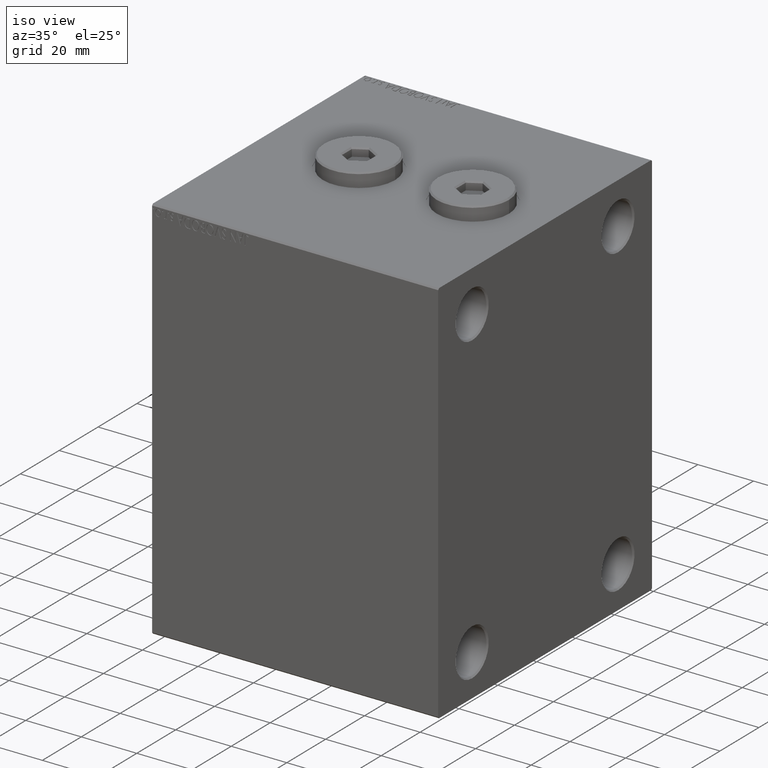
[diagram: clean part render]
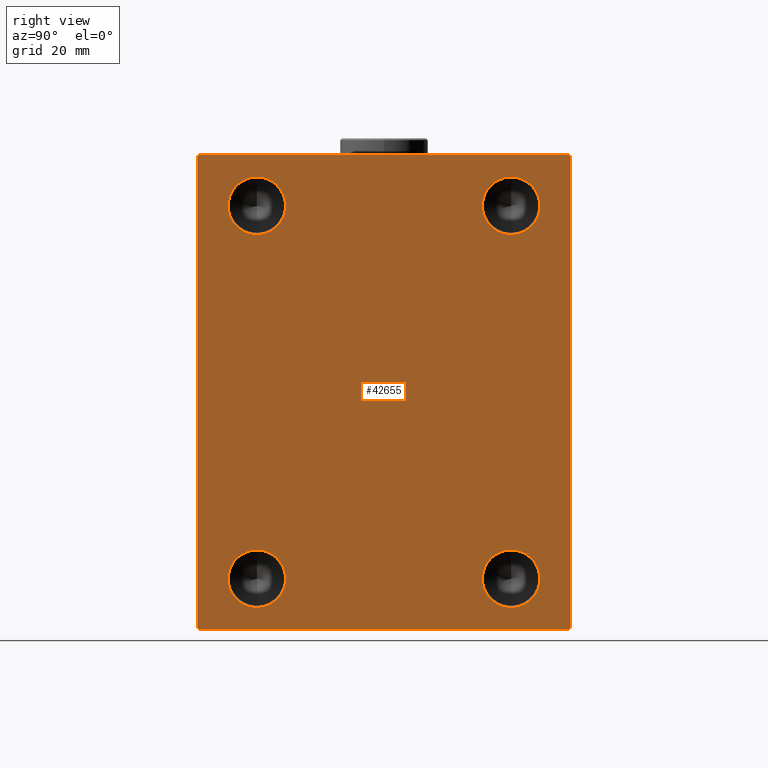
[diagram: tour spotlight — one face highlighted and labeled with its STEP entity id]
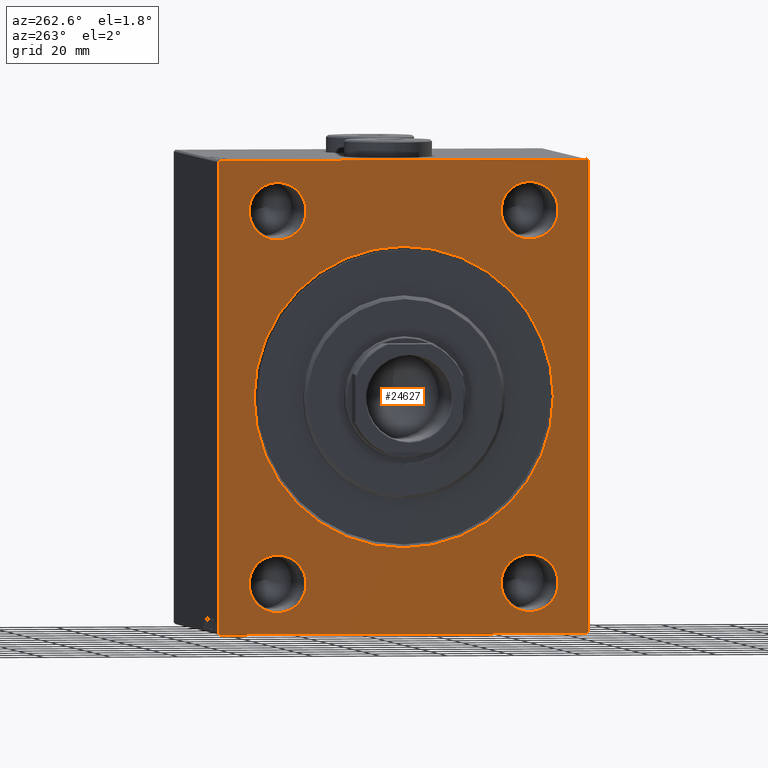
[diagram: tour spotlight — one face highlighted and labeled with its STEP entity id]
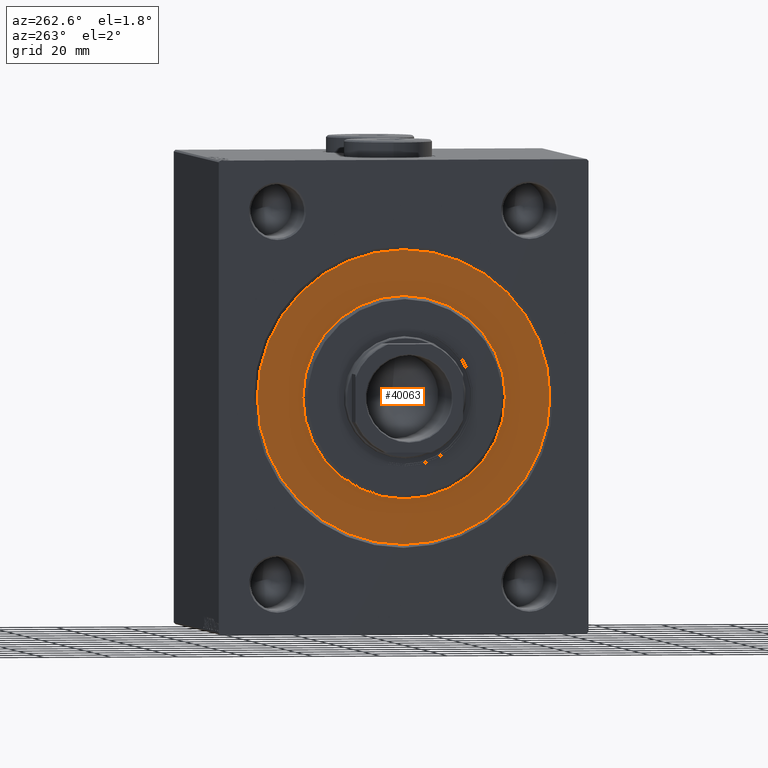
[diagram: tour spotlight — one face highlighted and labeled with its STEP entity id]
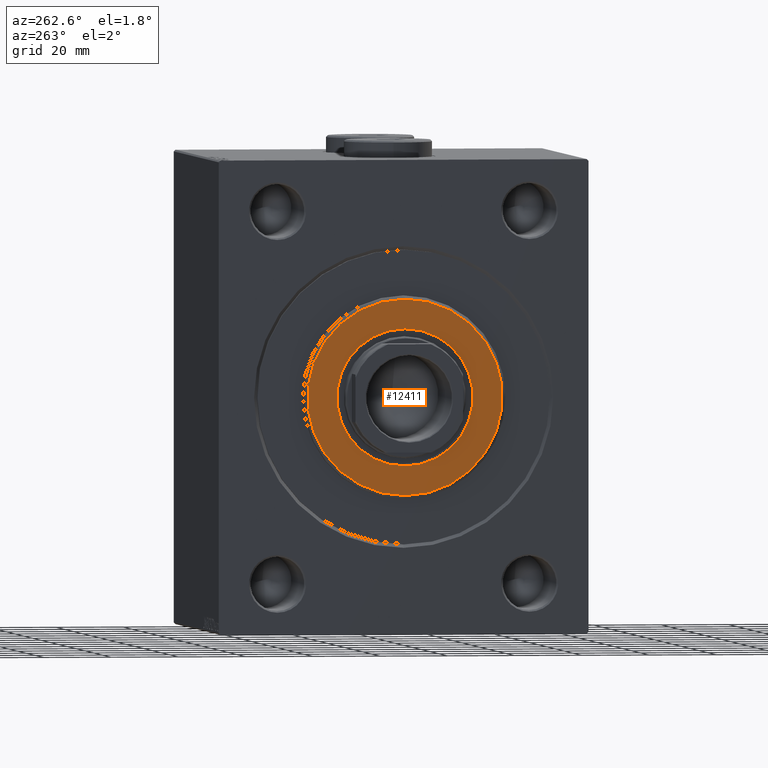
[diagram: tour spotlight — one face highlighted and labeled with its STEP entity id]
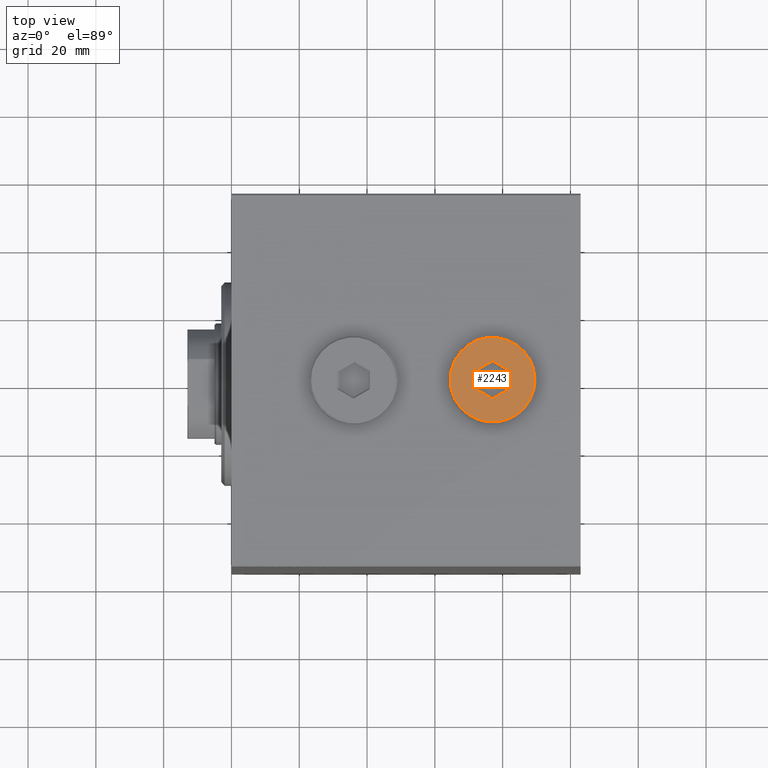
[diagram: tour spotlight — one face highlighted and labeled with its STEP entity id]
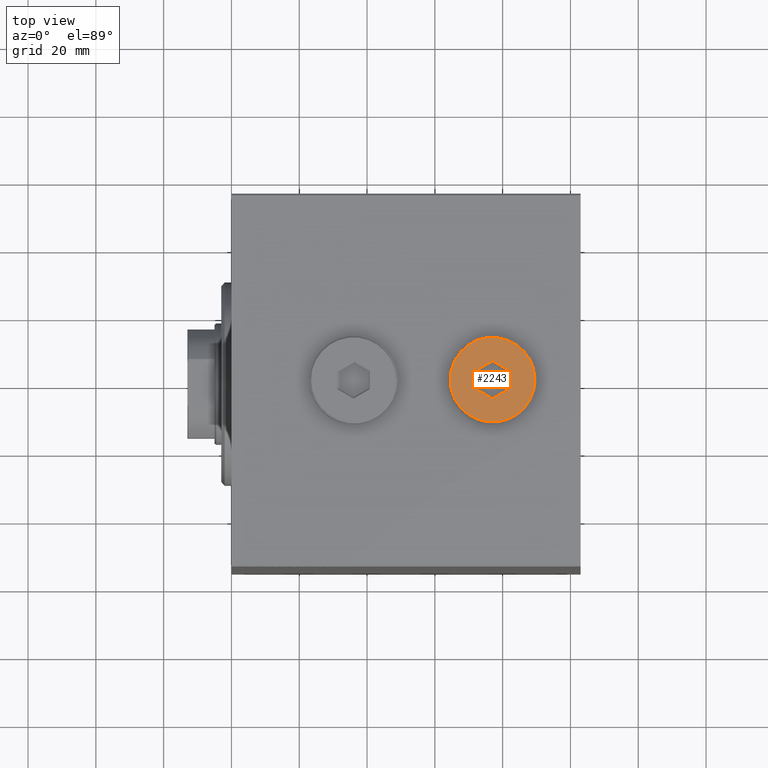
[diagram: tour spotlight — one face highlighted and labeled with its STEP entity id]
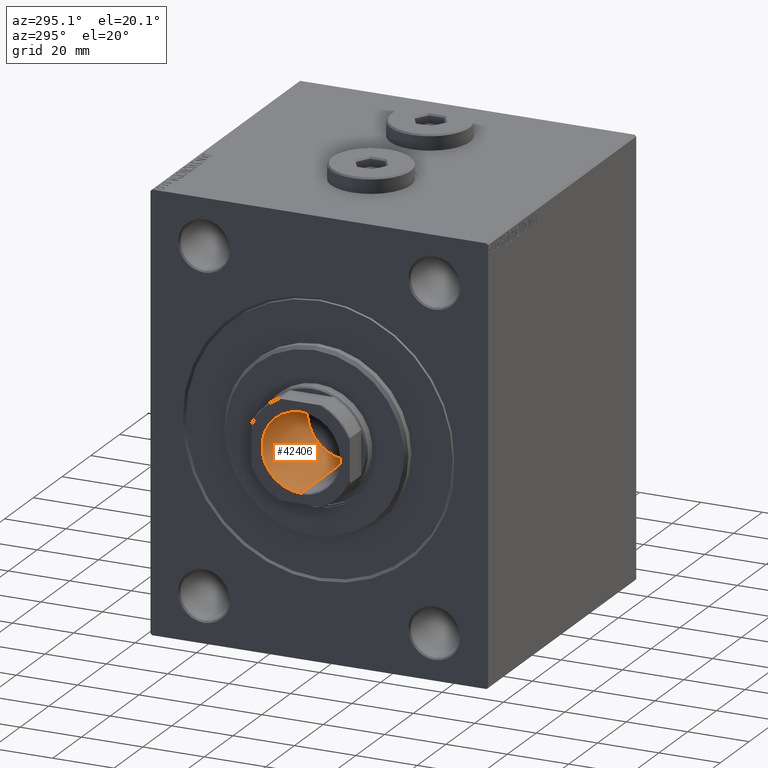
[diagram: tour spotlight — one face highlighted and labeled with its STEP entity id]
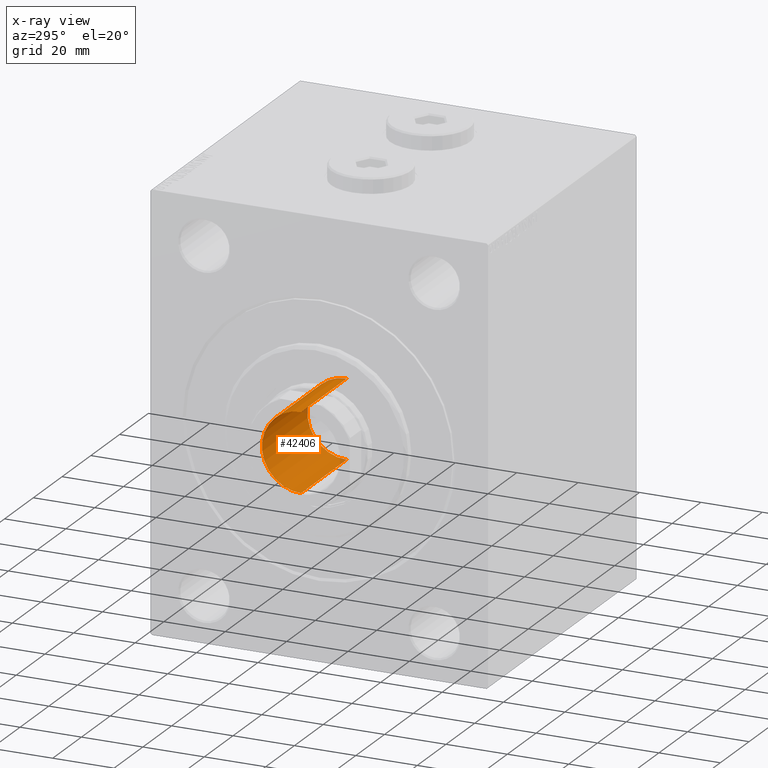
[diagram: x-ray of the same camera — body ghosted, this tour face saturated]
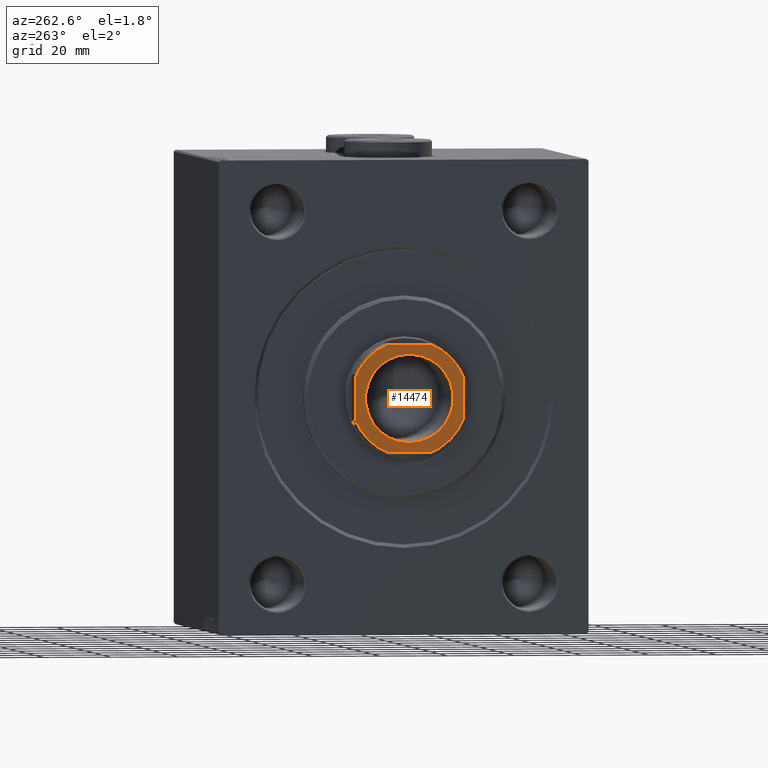
[diagram: tour spotlight — one face highlighted and labeled with its STEP entity id]
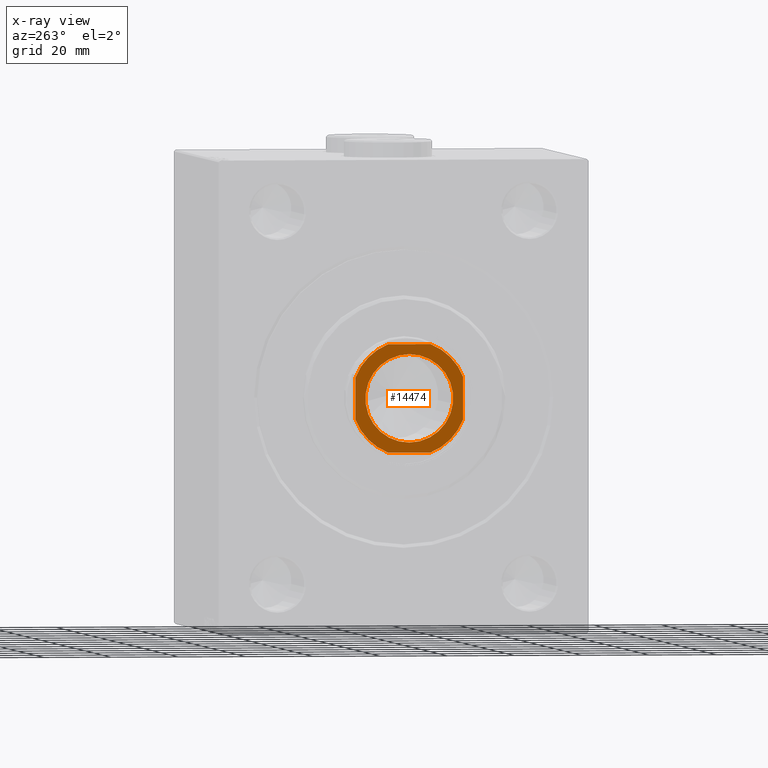
[diagram: x-ray of the same camera — body ghosted, this tour face saturated]
A machine part: a face-by-face anatomy tour. The part has 936 B-rep faces; the first image is the clean iso view, then the 8 largest visible faces are spotlighted one at a time (largest first), each with its STEP entity span.

Face 1 — right view, entity #42655. In plain terms, the highlighted planar face has unit normal (1, 0, 0).
Definition (entity closure, byte-faithful):
#80 = CIRCLE ( 'NONE', #12592, 8.500000000000007105 ) ;
#707 = DIRECTION ( 'NONE',  ( -0.000000000000000000, 0.7071067811865230368, 0.7071067811865721087 ) ) ;
#1395 = ORIENTED_EDGE ( 'NONE', *, *, #30491, .F. ) ;
#1812 = AXIS2_PLACEMENT_3D ( 'NONE', #43859, #33507, #5216 ) ;
#2042 = DIRECTION ( 'NONE',  ( 1.000000000000000000, -0.000000000000000000, -0.000000000000000000 ) ) ;
#2255 = DIRECTION ( 'NONE',  ( 0.000000000000000000, 0.000000000000000000, -1.000000000000000000 ) ) ;
#3046 = VERTEX_POINT ( 'NONE', #37062 ) ;
#3227 = ORIENTED_EDGE ( 'NONE', *, *, #35218, .T. ) ;
#4045 = DIRECTION ( 'NONE',  ( 0.000000000000000000, -1.000000000000000000, -1.261617073437677999E-16 ) ) ;
#4152 = LINE ( 'NONE', #32212, #20583 ) ;
#4227 = AXIS2_PLACEMENT_3D ( 'NONE', #40110, #15511, #22617 ) ;
#4365 = CIRCLE ( 'NONE', #16116, 8.500000000000007105 ) ;
#4482 = CARTESIAN_POINT ( 'NONE',  ( 103.0000000000000000, 37.50000000000000000, -54.99999999999999289 ) ) ;
#4912 = EDGE_CURVE ( 'NONE', #17503, #9265, #8081, .T. ) ;
#4942 = DIRECTION ( 'NONE',  ( -0.000000000000000000, -0.7071067811865671127, 0.7071067811865279218 ) ) ;
#5025 = VECTOR ( 'NONE', #36264, 1000.000000000000000 ) ;
#5171 = DIRECTION ( 'NONE',  ( 0.000000000000000000, 0.000000000000000000, -1.000000000000000000 ) ) ;
#5176 = CARTESIAN_POINT ( 'NONE',  ( 103.0000000000000000, 62.24999999999849365, 62.25000000000193978 ) ) ;
#5216 = DIRECTION ( 'NONE',  ( 0.000000000000000000, 0.000000000000000000, -1.000000000000000000 ) ) ;
#5388 = EDGE_CURVE ( 'NONE', #41659, #27737, #25548, .T. ) ;
#5393 = CARTESIAN_POINT ( 'NONE',  ( 103.0000000000000000, -37.49999999999999289, -54.99999999999999289 ) ) ;
#5763 = VECTOR ( 'NONE', #12218, 1000.000000000000000 ) ;
#5825 = AXIS2_PLACEMENT_3D ( 'NONE', #36522, #26623, #2255 ) ;
#5883 = CARTESIAN_POINT ( 'NONE',  ( 103.0000000000000000, 37.50000000000000000, 46.50000000000000000 ) ) ;
#6367 = CARTESIAN_POINT ( 'NONE',  ( 103.0000000000000000, 37.50000000000000000, -46.49999999999998579 ) ) ;
#6406 = VERTEX_POINT ( 'NONE', #15803 ) ;
#6495 = CARTESIAN_POINT ( 'NONE',  ( 103.0000000000000000, -37.49999999999999289, 63.50000000000001421 ) ) ;
#6557 = CIRCLE ( 'NONE', #5825, 8.500000000000007105 ) ;
#6861 = ORIENTED_EDGE ( 'NONE', *, *, #17282, .F. ) ;
#6965 = DIRECTION ( 'NONE',  ( 1.000000000000000000, -0.000000000000000000, -0.000000000000000000 ) ) ;
#7096 = VERTEX_POINT ( 'NONE', #40067 ) ;
#7381 = VERTEX_POINT ( 'NONE', #39090 ) ;
#8081 = LINE ( 'NONE', #40050, #5763 ) ;
#8082 = CARTESIAN_POINT ( 'NONE',  ( 103.0000000000000000, -55.00000000000000000, -69.50000000000000000 ) ) ;
#8374 = AXIS2_PLACEMENT_3D ( 'NONE', #34364, #6965, #27451 ) ;
#8663 = PLANE ( 'NONE',  #1812 ) ;
#8844 = LINE ( 'NONE', #15059, #10456 ) ;
#8854 = DIRECTION ( 'NONE',  ( 0.000000000000000000, -9.912705577010325549E-17, 1.000000000000000000 ) ) ;
#8862 = LINE ( 'NONE', #5176, #43184 ) ;
#9045 = VERTEX_POINT ( 'NONE', #33133 ) ;
#9265 = VERTEX_POINT ( 'NONE', #24117 ) ;
#9400 = EDGE_CURVE ( 'NONE', #37935, #3046, #8862, .T. ) ;
#9589 = ORIENTED_EDGE ( 'NONE', *, *, #4912, .T. ) ;
#9756 = DIRECTION ( 'NONE',  ( 0.000000000000000000, 0.000000000000000000, -1.000000000000000000 ) ) ;
#10456 = VECTOR ( 'NONE', #43113, 1000.000000000000000 ) ;
#10494 = DIRECTION ( 'NONE',  ( 1.000000000000000000, -0.000000000000000000, -0.000000000000000000 ) ) ;
#11564 = VERTEX_POINT ( 'NONE', #24785 ) ;
#12198 = EDGE_CURVE ( 'NONE', #27737, #41659, #4365, .T. ) ;
#12218 = DIRECTION ( 'NONE',  ( 0.000000000000000000, -0.7071067811865524577, -0.7071067811865426878 ) ) ;
#12426 = CARTESIAN_POINT ( 'NONE',  ( 103.0000000000000000, 54.99999999999999289, 69.50000000000004263 ) ) ;
#12548 = EDGE_CURVE ( 'NONE', #40319, #11564, #6557, .T. ) ;
#12592 = AXIS2_PLACEMENT_3D ( 'NONE', #24305, #10494, #42236 ) ;
#12628 = DIRECTION ( 'NONE',  ( 0.000000000000000000, 0.000000000000000000, -1.000000000000000000 ) ) ;
#12636 = CARTESIAN_POINT ( 'NONE',  ( 103.0000000000000000, -54.50000000000002132, 70.00000000000000000 ) ) ;
#12762 = LINE ( 'NONE', #26781, #31197 ) ;
#12879 = AXIS2_PLACEMENT_3D ( 'NONE', #4482, #36227, #5171 ) ;
#12983 = DIRECTION ( 'NONE',  ( 1.000000000000000000, -0.000000000000000000, -0.000000000000000000 ) ) ;
#13348 = ORIENTED_EDGE ( 'NONE', *, *, #44611, .T. ) ;
#13863 = FACE_BOUND ( 'NONE', #38002, .T. ) ;
#15058 = CARTESIAN_POINT ( 'NONE',  ( 103.0000000000000000, 55.00000000000000711, -69.49999999999998579 ) ) ;
#15059 = CARTESIAN_POINT ( 'NONE',  ( 103.0000000000000000, -55.00000000000000000, 70.00000000000000000 ) ) ;
#15511 = DIRECTION ( 'NONE',  ( 1.000000000000000000, -0.000000000000000000, -0.000000000000000000 ) ) ;
#15571 = LINE ( 'NONE', #39720, #5025 ) ;
#15634 = EDGE_CURVE ( 'NONE', #16068, #41547, #4152, .T. ) ;
#15803 = CARTESIAN_POINT ( 'NONE',  ( 103.0000000000000000, 37.50000000000000000, -63.50000000000000000 ) ) ;
#16027 = FACE_BOUND ( 'NONE', #25174, .T. ) ;
#16068 = VERTEX_POINT ( 'NONE', #20397 ) ;
#16116 = AXIS2_PLACEMENT_3D ( 'NONE', #41046, #12983, #9756 ) ;
#17085 = FACE_BOUND ( 'NONE', #41304, .T. ) ;
#17282 = EDGE_CURVE ( 'NONE', #9045, #7381, #26305, .T. ) ;
#17503 = VERTEX_POINT ( 'NONE', #12636 ) ;
#17952 = ORIENTED_EDGE ( 'NONE', *, *, #5388, .F. ) ;
#18299 = CARTESIAN_POINT ( 'NONE',  ( 103.0000000000000000, 54.99999999999999289, 70.00000000000001421 ) ) ;
#18694 = CIRCLE ( 'NONE', #12879, 8.500000000000007105 ) ;
#19042 = EDGE_CURVE ( 'NONE', #39628, #7096, #15571, .T. ) ;
#19473 = FACE_BOUND ( 'NONE', #42675, .T. ) ;
#19624 = ORIENTED_EDGE ( 'NONE', *, *, #12198, .F. ) ;
#20097 = DIRECTION ( 'NONE',  ( 0.000000000000000000, 0.000000000000000000, -1.000000000000000000 ) ) ;
#20397 = CARTESIAN_POINT ( 'NONE',  ( 103.0000000000000000, 54.50000000000004263, -69.99999999999998579 ) ) ;
#20583 = VECTOR ( 'NONE', #707, 999.9999999999998863 ) ;
#21566 = CARTESIAN_POINT ( 'NONE',  ( 103.0000000000000000, -37.49999999999999289, 46.50000000000000000 ) ) ;
#21677 = CIRCLE ( 'NONE', #29764, 8.500000000000007105 ) ;
#22617 = DIRECTION ( 'NONE',  ( 0.000000000000000000, 0.000000000000000000, -1.000000000000000000 ) ) ;
#23344 = AXIS2_PLACEMENT_3D ( 'NONE', #26869, #2042, #12628 ) ;
#24117 = CARTESIAN_POINT ( 'NONE',  ( 103.0000000000000000, -55.00000000000000000, 69.50000000000002842 ) ) ;
#24305 = CARTESIAN_POINT ( 'NONE',  ( 103.0000000000000000, 37.50000000000000000, 55.00000000000000711 ) ) ;
#24785 = CARTESIAN_POINT ( 'NONE',  ( 103.0000000000000000, 37.50000000000000000, 63.50000000000001421 ) ) ;
#25174 = EDGE_LOOP ( 'NONE', ( #25411, #29083 ) ) ;
#25411 = ORIENTED_EDGE ( 'NONE', *, *, #44489, .F. ) ;
#25548 = CIRCLE ( 'NONE', #23344, 8.500000000000007105 ) ;
#26305 = CIRCLE ( 'NONE', #4227, 8.500000000000007105 ) ;
#26623 = DIRECTION ( 'NONE',  ( 1.000000000000000000, -0.000000000000000000, -0.000000000000000000 ) ) ;
#26781 = CARTESIAN_POINT ( 'NONE',  ( 103.0000000000000000, 55.00000000000000711, -69.99999999999998579 ) ) ;
#26869 = CARTESIAN_POINT ( 'NONE',  ( 103.0000000000000000, -37.49999999999999289, 55.00000000000000711 ) ) ;
#27451 = DIRECTION ( 'NONE',  ( 0.000000000000000000, 0.000000000000000000, -1.000000000000000000 ) ) ;
#27737 = VERTEX_POINT ( 'NONE', #21566 ) ;
#28300 = ORIENTED_EDGE ( 'NONE', *, *, #15634, .T. ) ;
#29083 = ORIENTED_EDGE ( 'NONE', *, *, #38613, .F. ) ;
#29544 = ORIENTED_EDGE ( 'NONE', *, *, #36187, .T. ) ;
#29764 = AXIS2_PLACEMENT_3D ( 'NONE', #5393, #37139, #20097 ) ;
#30491 = EDGE_CURVE ( 'NONE', #11564, #40319, #80, .T. ) ;
#30495 = EDGE_CURVE ( 'NONE', #3046, #17503, #41788, .T. ) ;
#31028 = VERTEX_POINT ( 'NONE', #6367 ) ;
#31197 = VECTOR ( 'NONE', #8854, 1000.000000000000000 ) ;
#31532 = ORIENTED_EDGE ( 'NONE', *, *, #12548, .F. ) ;
#32142 = EDGE_LOOP ( 'NONE', ( #41841, #9589, #3227, #35103, #29544, #28300, #13348, #32388 ) ) ;
#32212 = CARTESIAN_POINT ( 'NONE',  ( 103.0000000000000000, 62.25000000000191136, -62.24999999999759126 ) ) ;
#32388 = ORIENTED_EDGE ( 'NONE', *, *, #9400, .T. ) ;
#33133 = CARTESIAN_POINT ( 'NONE',  ( 103.0000000000000000, -37.49999999999999289, -46.49999999999998579 ) ) ;
#33312 = ORIENTED_EDGE ( 'NONE', *, *, #45540, .F. ) ;
#33507 = DIRECTION ( 'NONE',  ( 1.000000000000000000, 0.000000000000000000, 0.000000000000000000 ) ) ;
#33902 = VECTOR ( 'NONE', #4045, 1000.000000000000000 ) ;
#34093 = CARTESIAN_POINT ( 'NONE',  ( 103.0000000000000000, -55.00000000000000000, -70.00000000000000000 ) ) ;
#34364 = CARTESIAN_POINT ( 'NONE',  ( 103.0000000000000000, 37.50000000000000000, -54.99999999999999289 ) ) ;
#35103 = ORIENTED_EDGE ( 'NONE', *, *, #19042, .T. ) ;
#35218 = EDGE_CURVE ( 'NONE', #9265, #39628, #8844, .T. ) ;
#36187 = EDGE_CURVE ( 'NONE', #7096, #16068, #40987, .T. ) ;
#36227 = DIRECTION ( 'NONE',  ( 1.000000000000000000, -0.000000000000000000, -0.000000000000000000 ) ) ;
#36264 = DIRECTION ( 'NONE',  ( -0.000000000000000000, 0.7071067811865672237, -0.7071067811865279218 ) ) ;
#36522 = CARTESIAN_POINT ( 'NONE',  ( 103.0000000000000000, 37.50000000000000000, 55.00000000000000711 ) ) ;
#36968 = FACE_OUTER_BOUND ( 'NONE', #32142, .T. ) ;
#37062 = CARTESIAN_POINT ( 'NONE',  ( 103.0000000000000000, 54.49999999999999289, 70.00000000000001421 ) ) ;
#37139 = DIRECTION ( 'NONE',  ( 1.000000000000000000, -0.000000000000000000, -0.000000000000000000 ) ) ;
#37935 = VERTEX_POINT ( 'NONE', #12426 ) ;
#38002 = EDGE_LOOP ( 'NONE', ( #1395, #31532 ) ) ;
#38613 = EDGE_CURVE ( 'NONE', #6406, #31028, #39959, .T. ) ;
#39090 = CARTESIAN_POINT ( 'NONE',  ( 103.0000000000000000, -37.49999999999999289, -63.50000000000000000 ) ) ;
#39628 = VERTEX_POINT ( 'NONE', #8082 ) ;
#39720 = CARTESIAN_POINT ( 'NONE',  ( 103.0000000000000000, -62.24999999999847233, -62.25000000000193268 ) ) ;
#39959 = CIRCLE ( 'NONE', #8374, 8.500000000000007105 ) ;
#40050 = CARTESIAN_POINT ( 'NONE',  ( 103.0000000000000000, -62.24999999999963762, 62.25000000000049738 ) ) ;
#40067 = CARTESIAN_POINT ( 'NONE',  ( 103.0000000000000000, -54.49999999999997158, -70.00000000000000000 ) ) ;
#40110 = CARTESIAN_POINT ( 'NONE',  ( 103.0000000000000000, -37.49999999999999289, -54.99999999999999289 ) ) ;
#40319 = VERTEX_POINT ( 'NONE', #5883 ) ;
#40987 = LINE ( 'NONE', #34093, #41377 ) ;
#41046 = CARTESIAN_POINT ( 'NONE',  ( 103.0000000000000000, -37.49999999999999289, 55.00000000000000711 ) ) ;
#41304 = EDGE_LOOP ( 'NONE', ( #6861, #33312 ) ) ;
#41377 = VECTOR ( 'NONE', #44663, 1000.000000000000000 ) ;
#41547 = VERTEX_POINT ( 'NONE', #15058 ) ;
#41659 = VERTEX_POINT ( 'NONE', #6495 ) ;
#41788 = LINE ( 'NONE', #18299, #33902 ) ;
#41841 = ORIENTED_EDGE ( 'NONE', *, *, #30495, .T. ) ;
#42236 = DIRECTION ( 'NONE',  ( 0.000000000000000000, 0.000000000000000000, -1.000000000000000000 ) ) ;
#42655 = ADVANCED_FACE ( 'NONE', ( #13863, #19473, #17085, #16027, #36968 ), #8663, .T. ) ;
#42675 = EDGE_LOOP ( 'NONE', ( #17952, #19624 ) ) ;
#43113 = DIRECTION ( 'NONE',  ( 0.000000000000000000, 0.000000000000000000, -1.000000000000000000 ) ) ;
#43184 = VECTOR ( 'NONE', #4942, 1000.000000000000000 ) ;
#43859 = CARTESIAN_POINT ( 'NONE',  ( 103.0000000000000000, 0.000000000000000000, 0.000000000000000000 ) ) ;
#44489 = EDGE_CURVE ( 'NONE', #31028, #6406, #18694, .T. ) ;
#44611 = EDGE_CURVE ( 'NONE', #41547, #37935, #12762, .T. ) ;
#44663 = DIRECTION ( 'NONE',  ( 0.000000000000000000, 1.000000000000000000, 1.261617073437677752E-16 ) ) ;
#45540 = EDGE_CURVE ( 'NONE', #7381, #9045, #21677, .T. ) ;

Face 2 — auxiliary view, entity #24627. In plain terms, the highlighted planar face has unit normal (1, 0, 0).
Definition (entity closure, byte-faithful):
#196 = EDGE_LOOP ( 'NONE', ( #28195, #18066 ) ) ;
#753 = ORIENTED_EDGE ( 'NONE', *, *, #11507, .T. ) ;
#847 = LINE ( 'NONE', #22228, #12053 ) ;
#1267 = DIRECTION ( 'NONE',  ( 1.000000000000000000, 0.000000000000000000, 0.000000000000000000 ) ) ;
#1314 = CARTESIAN_POINT ( 'NONE',  ( 0.000000000000000000, 0.000000000000000000, 0.000000000000000000 ) ) ;
#1845 = CIRCLE ( 'NONE', #6964, 8.500000000000007105 ) ;
#2378 = DIRECTION ( 'NONE',  ( 0.000000000000000000, 0.000000000000000000, -1.000000000000000000 ) ) ;
#2491 = DIRECTION ( 'NONE',  ( 0.000000000000000000, 0.000000000000000000, -1.000000000000000000 ) ) ;
#2584 = FACE_BOUND ( 'NONE', #31617, .T. ) ;
#2697 = VERTEX_POINT ( 'NONE', #41004 ) ;
#2767 = DIRECTION ( 'NONE',  ( 0.000000000000000000, -0.7071067811865230368, -0.7071067811865721087 ) ) ;
#2820 = DIRECTION ( 'NONE',  ( -0.000000000000000000, 0.7071067811865671127, -0.7071067811865279218 ) ) ;
#2877 = VERTEX_POINT ( 'NONE', #7835 ) ;
#2914 = CARTESIAN_POINT ( 'NONE',  ( 0.000000000000000000, 37.50000000000000000, 46.50000000000000000 ) ) ;
#3378 = EDGE_CURVE ( 'NONE', #6987, #9350, #10084, .T. ) ;
#3634 = CIRCLE ( 'NONE', #44043, 8.500000000000007105 ) ;
#3826 = VECTOR ( 'NONE', #12285, 1000.000000000000000 ) ;
#3891 = AXIS2_PLACEMENT_3D ( 'NONE', #15155, #21367, #15394 ) ;
#4714 = EDGE_CURVE ( 'NONE', #7656, #27563, #33889, .T. ) ;
#4847 = ORIENTED_EDGE ( 'NONE', *, *, #3378, .T. ) ;
#5009 = EDGE_CURVE ( 'NONE', #33511, #9258, #17020, .T. ) ;
#5080 = EDGE_LOOP ( 'NONE', ( #40360, #4847 ) ) ;
#5544 = CARTESIAN_POINT ( 'NONE',  ( 0.000000000000000000, 55.00000000000000711, -69.49999999999998579 ) ) ;
#5578 = DIRECTION ( 'NONE',  ( 1.000000000000000000, 0.000000000000000000, 0.000000000000000000 ) ) ;
#5677 = DIRECTION ( 'NONE',  ( 1.000000000000000000, 0.000000000000000000, 0.000000000000000000 ) ) ;
#5782 = CARTESIAN_POINT ( 'NONE',  ( 0.000000000000000000, 37.50000000000000000, 63.50000000000001421 ) ) ;
#6482 = LINE ( 'NONE', #38463, #24951 ) ;
#6964 = AXIS2_PLACEMENT_3D ( 'NONE', #37866, #5677, #9358 ) ;
#6987 = VERTEX_POINT ( 'NONE', #7857 ) ;
#7110 = VERTEX_POINT ( 'NONE', #5782 ) ;
#7656 = VERTEX_POINT ( 'NONE', #17314 ) ;
#7709 = ORIENTED_EDGE ( 'NONE', *, *, #8704, .T. ) ;
#7722 = ORIENTED_EDGE ( 'NONE', *, *, #33425, .F. ) ;
#7835 = CARTESIAN_POINT ( 'NONE',  ( 0.000000000000000000, -55.00000000000000000, -69.50000000000000000 ) ) ;
#7857 = CARTESIAN_POINT ( 'NONE',  ( 0.000000000000000000, 37.50000000000000000, -63.50000000000000000 ) ) ;
#7916 = CARTESIAN_POINT ( 'NONE',  ( 0.000000000000000000, 37.50000000000000000, 55.00000000000000711 ) ) ;
#8079 = CARTESIAN_POINT ( 'NONE',  ( 0.000000000000000000, 5.449678256205723559E-15, -44.50000000000001421 ) ) ;
#8117 = FACE_BOUND ( 'NONE', #196, .T. ) ;
#8704 = EDGE_CURVE ( 'NONE', #44920, #2877, #18905, .T. ) ;
#9064 = CIRCLE ( 'NONE', #3891, 8.500000000000007105 ) ;
#9258 = VERTEX_POINT ( 'NONE', #17663 ) ;
#9350 = VERTEX_POINT ( 'NONE', #33469 ) ;
#9358 = DIRECTION ( 'NONE',  ( 0.000000000000000000, 0.000000000000000000, -1.000000000000000000 ) ) ;
#9849 = AXIS2_PLACEMENT_3D ( 'NONE', #17822, #27503, #34646 ) ;
#10084 = CIRCLE ( 'NONE', #35040, 8.500000000000007105 ) ;
#10204 = ORIENTED_EDGE ( 'NONE', *, *, #4714, .T. ) ;
#10504 = ORIENTED_EDGE ( 'NONE', *, *, #14615, .F. ) ;
#11507 = EDGE_CURVE ( 'NONE', #34276, #25537, #33707, .T. ) ;
#12053 = VECTOR ( 'NONE', #21769, 1000.000000000000000 ) ;
#12071 = DIRECTION ( 'NONE',  ( 1.000000000000000000, 0.000000000000000000, 0.000000000000000000 ) ) ;
#12285 = DIRECTION ( 'NONE',  ( 0.000000000000000000, -9.912705577010325549E-17, 1.000000000000000000 ) ) ;
#12287 = ORIENTED_EDGE ( 'NONE', *, *, #25458, .T. ) ;
#12372 = VECTOR ( 'NONE', #2767, 999.9999999999998863 ) ;
#12749 = ORIENTED_EDGE ( 'NONE', *, *, #5009, .T. ) ;
#13119 = ORIENTED_EDGE ( 'NONE', *, *, #39817, .T. ) ;
#13282 = EDGE_LOOP ( 'NONE', ( #30313, #33100, #10504, #10204, #7722, #12749, #17812, #7709 ) ) ;
#13390 = DIRECTION ( 'NONE',  ( 0.000000000000000000, 0.000000000000000000, -1.000000000000000000 ) ) ;
#14615 = EDGE_CURVE ( 'NONE', #7656, #42238, #6482, .T. ) ;
#14832 = DIRECTION ( 'NONE',  ( 1.000000000000000000, 0.000000000000000000, 0.000000000000000000 ) ) ;
#14850 = ORIENTED_EDGE ( 'NONE', *, *, #38450, .T. ) ;
#15155 = CARTESIAN_POINT ( 'NONE',  ( 0.000000000000000000, -37.49999999999999289, -54.99999999999999289 ) ) ;
#15353 = DIRECTION ( 'NONE',  ( 1.000000000000000000, 0.000000000000000000, 0.000000000000000000 ) ) ;
#15394 = DIRECTION ( 'NONE',  ( 0.000000000000000000, 0.000000000000000000, -1.000000000000000000 ) ) ;
#15772 = DIRECTION ( 'NONE',  ( 1.000000000000000000, 0.000000000000000000, 0.000000000000000000 ) ) ;
#15994 = DIRECTION ( 'NONE',  ( 0.000000000000000000, 0.000000000000000000, -1.000000000000000000 ) ) ;
#16292 = VERTEX_POINT ( 'NONE', #8079 ) ;
#16368 = AXIS2_PLACEMENT_3D ( 'NONE', #7916, #12071, #36443 ) ;
#16407 = CARTESIAN_POINT ( 'NONE',  ( 0.000000000000000000, -55.00000000000000000, 70.00000000000000000 ) ) ;
#17020 = LINE ( 'NONE', #5544, #12372 ) ;
#17286 = AXIS2_PLACEMENT_3D ( 'NONE', #38983, #14832, #29306 ) ;
#17314 = CARTESIAN_POINT ( 'NONE',  ( 0.000000000000000000, 54.49999999999999289, 70.00000000000001421 ) ) ;
#17663 = CARTESIAN_POINT ( 'NONE',  ( 0.000000000000000000, 54.50000000000004263, -69.99999999999998579 ) ) ;
#17812 = ORIENTED_EDGE ( 'NONE', *, *, #42600, .F. ) ;
#17822 = CARTESIAN_POINT ( 'NONE',  ( 0.000000000000000000, 0.000000000000000000, 0.000000000000000000 ) ) ;
#17879 = DIRECTION ( 'NONE',  ( 1.000000000000000000, 0.000000000000000000, 0.000000000000000000 ) ) ;
#18066 = ORIENTED_EDGE ( 'NONE', *, *, #20366, .T. ) ;
#18180 = VECTOR ( 'NONE', #2820, 1000.000000000000000 ) ;
#18280 = CARTESIAN_POINT ( 'NONE',  ( 0.000000000000000000, -37.49999999999999289, 55.00000000000000711 ) ) ;
#18905 = LINE ( 'NONE', #25821, #29944 ) ;
#19070 = CARTESIAN_POINT ( 'NONE',  ( 0.000000000000000000, -54.50000000000002132, 70.00000000000000000 ) ) ;
#20058 = VECTOR ( 'NONE', #2378, 1000.000000000000000 ) ;
#20366 = EDGE_CURVE ( 'NONE', #16292, #2697, #23449, .T. ) ;
#20864 = CIRCLE ( 'NONE', #9849, 44.50000000000001421 ) ;
#21367 = DIRECTION ( 'NONE',  ( 1.000000000000000000, 0.000000000000000000, 0.000000000000000000 ) ) ;
#21769 = DIRECTION ( 'NONE',  ( 0.000000000000000000, 1.000000000000000000, 1.261617073437677752E-16 ) ) ;
#21923 = AXIS2_PLACEMENT_3D ( 'NONE', #35375, #17879, #31914 ) ;
#22228 = CARTESIAN_POINT ( 'NONE',  ( 0.000000000000000000, -55.00000000000000000, -70.00000000000000000 ) ) ;
#22722 = EDGE_LOOP ( 'NONE', ( #12287, #14850 ) ) ;
#22803 = CARTESIAN_POINT ( 'NONE',  ( 0.000000000000000000, -54.49999999999997158, -70.00000000000000000 ) ) ;
#22843 = DIRECTION ( 'NONE',  ( -0.000000000000000000, 0.7071067811865524577, 0.7071067811865426878 ) ) ;
#23329 = CARTESIAN_POINT ( 'NONE',  ( 0.000000000000000000, -37.49999999999999289, 55.00000000000000711 ) ) ;
#23449 = CIRCLE ( 'NONE', #42553, 44.50000000000001421 ) ;
#23509 = PLANE ( 'NONE',  #41796 ) ;
#23525 = CARTESIAN_POINT ( 'NONE',  ( 0.000000000000000000, 54.49999999999999289, 70.00000000000001421 ) ) ;
#23654 = VERTEX_POINT ( 'NONE', #38970 ) ;
#24627 = ADVANCED_FACE ( 'NONE', ( #8117, #32723, #30850, #2584, #37771, #40996 ), #23509, .F. ) ;
#24635 = VERTEX_POINT ( 'NONE', #27185 ) ;
#24951 = VECTOR ( 'NONE', #34789, 1000.000000000000000 ) ;
#25458 = EDGE_CURVE ( 'NONE', #24635, #29599, #3634, .T. ) ;
#25537 = VERTEX_POINT ( 'NONE', #31982 ) ;
#25821 = CARTESIAN_POINT ( 'NONE',  ( 0.000000000000000000, -54.49999999999997158, -70.00000000000000000 ) ) ;
#25900 = CIRCLE ( 'NONE', #16368, 8.500000000000007105 ) ;
#26508 = CARTESIAN_POINT ( 'NONE',  ( 0.000000000000000000, 0.000000000000000000, 0.000000000000000000 ) ) ;
#27185 = CARTESIAN_POINT ( 'NONE',  ( 0.000000000000000000, -37.49999999999999289, 63.50000000000001421 ) ) ;
#27464 = CIRCLE ( 'NONE', #36313, 8.500000000000007105 ) ;
#27503 = DIRECTION ( 'NONE',  ( 1.000000000000000000, 0.000000000000000000, 0.000000000000000000 ) ) ;
#27563 = VERTEX_POINT ( 'NONE', #33588 ) ;
#27970 = VERTEX_POINT ( 'NONE', #2914 ) ;
#28195 = ORIENTED_EDGE ( 'NONE', *, *, #38311, .T. ) ;
#28699 = ORIENTED_EDGE ( 'NONE', *, *, #44359, .T. ) ;
#29306 = DIRECTION ( 'NONE',  ( 0.000000000000000000, 0.000000000000000000, -1.000000000000000000 ) ) ;
#29593 = DIRECTION ( 'NONE',  ( 0.000000000000000000, 0.000000000000000000, -1.000000000000000000 ) ) ;
#29599 = VERTEX_POINT ( 'NONE', #44121 ) ;
#29944 = VECTOR ( 'NONE', #32254, 1000.000000000000000 ) ;
#30313 = ORIENTED_EDGE ( 'NONE', *, *, #39443, .F. ) ;
#30417 = LINE ( 'NONE', #40566, #34732 ) ;
#30850 = FACE_BOUND ( 'NONE', #22722, .T. ) ;
#31617 = EDGE_LOOP ( 'NONE', ( #28699, #33917 ) ) ;
#31914 = DIRECTION ( 'NONE',  ( 0.000000000000000000, 0.000000000000000000, -1.000000000000000000 ) ) ;
#31982 = CARTESIAN_POINT ( 'NONE',  ( 0.000000000000000000, -37.49999999999999289, -46.49999999999998579 ) ) ;
#32254 = DIRECTION ( 'NONE',  ( -0.000000000000000000, -0.7071067811865672237, 0.7071067811865279218 ) ) ;
#32723 = FACE_BOUND ( 'NONE', #43374, .T. ) ;
#32756 = CARTESIAN_POINT ( 'NONE',  ( 0.000000000000000000, 55.00000000000000711, -69.99999999999998579 ) ) ;
#33100 = ORIENTED_EDGE ( 'NONE', *, *, #39446, .T. ) ;
#33324 = DIRECTION ( 'NONE',  ( 1.000000000000000000, 0.000000000000000000, 0.000000000000000000 ) ) ;
#33425 = EDGE_CURVE ( 'NONE', #33511, #27563, #42418, .T. ) ;
#33454 = CARTESIAN_POINT ( 'NONE',  ( 0.000000000000000000, -37.49999999999999289, -63.50000000000000000 ) ) ;
#33469 = CARTESIAN_POINT ( 'NONE',  ( 0.000000000000000000, 37.50000000000000000, -46.49999999999998579 ) ) ;
#33511 = VERTEX_POINT ( 'NONE', #34964 ) ;
#33588 = CARTESIAN_POINT ( 'NONE',  ( 0.000000000000000000, 54.99999999999999289, 69.50000000000004263 ) ) ;
#33707 = CIRCLE ( 'NONE', #21923, 8.500000000000007105 ) ;
#33889 = LINE ( 'NONE', #23525, #18180 ) ;
#33917 = ORIENTED_EDGE ( 'NONE', *, *, #35239, .T. ) ;
#34006 = CARTESIAN_POINT ( 'NONE',  ( 0.000000000000000000, 37.50000000000000000, -54.99999999999999289 ) ) ;
#34276 = VERTEX_POINT ( 'NONE', #33454 ) ;
#34646 = DIRECTION ( 'NONE',  ( 0.000000000000000000, 0.000000000000000000, -1.000000000000000000 ) ) ;
#34732 = VECTOR ( 'NONE', #22843, 1000.000000000000000 ) ;
#34789 = DIRECTION ( 'NONE',  ( 0.000000000000000000, -1.000000000000000000, -1.261617073437677999E-16 ) ) ;
#34964 = CARTESIAN_POINT ( 'NONE',  ( 0.000000000000000000, 55.00000000000000711, -69.49999999999998579 ) ) ;
#35040 = AXIS2_PLACEMENT_3D ( 'NONE', #34006, #33324, #2491 ) ;
#35239 = EDGE_CURVE ( 'NONE', #27970, #7110, #25900, .T. ) ;
#35375 = CARTESIAN_POINT ( 'NONE',  ( 0.000000000000000000, -37.49999999999999289, -54.99999999999999289 ) ) ;
#36313 = AXIS2_PLACEMENT_3D ( 'NONE', #18280, #1267, #39444 ) ;
#36443 = DIRECTION ( 'NONE',  ( 0.000000000000000000, 0.000000000000000000, -1.000000000000000000 ) ) ;
#37341 = LINE ( 'NONE', #16407, #20058 ) ;
#37771 = FACE_BOUND ( 'NONE', #5080, .T. ) ;
#37866 = CARTESIAN_POINT ( 'NONE',  ( 0.000000000000000000, 37.50000000000000000, 55.00000000000000711 ) ) ;
#38311 = EDGE_CURVE ( 'NONE', #2697, #16292, #20864, .T. ) ;
#38450 = EDGE_CURVE ( 'NONE', #29599, #24635, #27464, .T. ) ;
#38463 = CARTESIAN_POINT ( 'NONE',  ( 0.000000000000000000, 54.99999999999999289, 70.00000000000001421 ) ) ;
#38970 = CARTESIAN_POINT ( 'NONE',  ( 0.000000000000000000, -55.00000000000000000, 69.50000000000002842 ) ) ;
#38983 = CARTESIAN_POINT ( 'NONE',  ( 0.000000000000000000, 37.50000000000000000, -54.99999999999999289 ) ) ;
#39443 = EDGE_CURVE ( 'NONE', #23654, #2877, #37341, .T. ) ;
#39444 = DIRECTION ( 'NONE',  ( 0.000000000000000000, 0.000000000000000000, -1.000000000000000000 ) ) ;
#39446 = EDGE_CURVE ( 'NONE', #23654, #42238, #30417, .T. ) ;
#39817 = EDGE_CURVE ( 'NONE', #25537, #34276, #9064, .T. ) ;
#40360 = ORIENTED_EDGE ( 'NONE', *, *, #45487, .T. ) ;
#40566 = CARTESIAN_POINT ( 'NONE',  ( 0.000000000000000000, -55.00000000000000000, 69.50000000000002842 ) ) ;
#40996 = FACE_OUTER_BOUND ( 'NONE', #13282, .T. ) ;
#41004 = CARTESIAN_POINT ( 'NONE',  ( 0.000000000000000000, 0.000000000000000000, 44.50000000000001421 ) ) ;
#41796 = AXIS2_PLACEMENT_3D ( 'NONE', #26508, #5578, #13390 ) ;
#42238 = VERTEX_POINT ( 'NONE', #19070 ) ;
#42418 = LINE ( 'NONE', #32756, #3826 ) ;
#42553 = AXIS2_PLACEMENT_3D ( 'NONE', #1314, #15353, #29593 ) ;
#42600 = EDGE_CURVE ( 'NONE', #44920, #9258, #847, .T. ) ;
#43374 = EDGE_LOOP ( 'NONE', ( #13119, #753 ) ) ;
#44043 = AXIS2_PLACEMENT_3D ( 'NONE', #23329, #15772, #15994 ) ;
#44121 = CARTESIAN_POINT ( 'NONE',  ( 0.000000000000000000, -37.49999999999999289, 46.50000000000000000 ) ) ;
#44359 = EDGE_CURVE ( 'NONE', #7110, #27970, #1845, .T. ) ;
#44455 = CIRCLE ( 'NONE', #17286, 8.500000000000007105 ) ;
#44920 = VERTEX_POINT ( 'NONE', #22803 ) ;
#45487 = EDGE_CURVE ( 'NONE', #9350, #6987, #44455, .T. ) ;

Face 3 — auxiliary view, entity #40063. In plain terms, the highlighted planar face has unit normal (1, -0, -0).
Definition (entity closure, byte-faithful):
#2055 = ORIENTED_EDGE ( 'NONE', *, *, #44878, .F. ) ;
#4825 = DIRECTION ( 'NONE',  ( 0.000000000000000000, 0.000000000000000000, -1.000000000000000000 ) ) ;
#5136 = VERTEX_POINT ( 'NONE', #10563 ) ;
#5637 = ORIENTED_EDGE ( 'NONE', *, *, #37906, .F. ) ;
#6300 = VERTEX_POINT ( 'NONE', #36265 ) ;
#8267 = CARTESIAN_POINT ( 'NONE',  ( 0.000000000000000000, 0.000000000000000000, 0.000000000000000000 ) ) ;
#9815 = CIRCLE ( 'NONE', #35514, 30.00000000000000000 ) ;
#10563 = CARTESIAN_POINT ( 'NONE',  ( 0.000000000000000000, 3.673940397442059178E-15, -30.00000000000000000 ) ) ;
#11505 = CARTESIAN_POINT ( 'NONE',  ( 0.000000000000000000, 0.000000000000000000, 0.000000000000000000 ) ) ;
#11725 = DIRECTION ( 'NONE',  ( 0.000000000000000000, 0.000000000000000000, 1.000000000000000000 ) ) ;
#12178 = VERTEX_POINT ( 'NONE', #23324 ) ;
#12343 = DIRECTION ( 'NONE',  ( 0.000000000000000000, 0.000000000000000000, -1.000000000000000000 ) ) ;
#13658 = ORIENTED_EDGE ( 'NONE', *, *, #17778, .F. ) ;
#13738 = PLANE ( 'NONE',  #36208 ) ;
#16003 = CIRCLE ( 'NONE', #27014, 30.00000000000000000 ) ;
#17778 = EDGE_CURVE ( 'NONE', #12178, #5136, #16003, .T. ) ;
#17804 = AXIS2_PLACEMENT_3D ( 'NONE', #8267, #29179, #11725 ) ;
#18908 = DIRECTION ( 'NONE',  ( -1.000000000000000000, 0.000000000000000000, 0.000000000000000000 ) ) ;
#19468 = DIRECTION ( 'NONE',  ( 1.000000000000000000, -0.000000000000000000, 0.000000000000000000 ) ) ;
#19704 = CARTESIAN_POINT ( 'NONE',  ( 0.000000000000000000, 0.000000000000000000, -43.50000000000000000 ) ) ;
#23324 = CARTESIAN_POINT ( 'NONE',  ( 0.000000000000000000, 0.000000000000000000, 30.00000000000000000 ) ) ;
#23867 = CARTESIAN_POINT ( 'NONE',  ( 0.000000000000000000, 0.000000000000000000, 0.000000000000000000 ) ) ;
#24316 = FACE_BOUND ( 'NONE', #42443, .T. ) ;
#25353 = DIRECTION ( 'NONE',  ( 0.000000000000000000, 0.000000000000000000, 1.000000000000000000 ) ) ;
#26061 = CIRCLE ( 'NONE', #34884, 43.50000000000000000 ) ;
#27014 = AXIS2_PLACEMENT_3D ( 'NONE', #44084, #19468, #12343 ) ;
#27126 = VERTEX_POINT ( 'NONE', #19704 ) ;
#27532 = FACE_OUTER_BOUND ( 'NONE', #39508, .T. ) ;
#29179 = DIRECTION ( 'NONE',  ( -1.000000000000000000, 0.000000000000000000, 0.000000000000000000 ) ) ;
#31206 = DIRECTION ( 'NONE',  ( 0.000000000000000000, 0.000000000000000000, 1.000000000000000000 ) ) ;
#32256 = CARTESIAN_POINT ( 'NONE',  ( 0.000000000000000000, 0.000000000000000000, 0.000000000000000000 ) ) ;
#34583 = ORIENTED_EDGE ( 'NONE', *, *, #34670, .F. ) ;
#34670 = EDGE_CURVE ( 'NONE', #6300, #27126, #34738, .T. ) ;
#34738 = CIRCLE ( 'NONE', #17804, 43.50000000000000000 ) ;
#34884 = AXIS2_PLACEMENT_3D ( 'NONE', #32256, #18908, #25353 ) ;
#35514 = AXIS2_PLACEMENT_3D ( 'NONE', #11505, #43935, #4825 ) ;
#36208 = AXIS2_PLACEMENT_3D ( 'NONE', #23867, #41803, #31206 ) ;
#36265 = CARTESIAN_POINT ( 'NONE',  ( 0.000000000000000000, 5.327213576290986044E-15, 43.50000000000000000 ) ) ;
#37906 = EDGE_CURVE ( 'NONE', #5136, #12178, #9815, .T. ) ;
#39508 = EDGE_LOOP ( 'NONE', ( #2055, #34583 ) ) ;
#40063 = ADVANCED_FACE ( 'NONE', ( #24316, #27532 ), #13738, .F. ) ;
#41803 = DIRECTION ( 'NONE',  ( -1.000000000000000000, 0.000000000000000000, 0.000000000000000000 ) ) ;
#42443 = EDGE_LOOP ( 'NONE', ( #13658, #5637 ) ) ;
#43935 = DIRECTION ( 'NONE',  ( 1.000000000000000000, -0.000000000000000000, 0.000000000000000000 ) ) ;
#44084 = CARTESIAN_POINT ( 'NONE',  ( 0.000000000000000000, 0.000000000000000000, 0.000000000000000000 ) ) ;
#44878 = EDGE_CURVE ( 'NONE', #27126, #6300, #26061, .T. ) ;

Face 4 — auxiliary view, entity #12411. In plain terms, the highlighted planar face has unit normal (-1, 0, 0).
Definition (entity closure, byte-faithful):
#110 = EDGE_CURVE ( 'NONE', #2157, #26775, #36429, .T. ) ;
#353 = CARTESIAN_POINT ( 'NONE',  ( 3.000000000000000000, 0.000000000000000000, 29.00000000000002132 ) ) ;
#1425 = AXIS2_PLACEMENT_3D ( 'NONE', #37554, #44450, #40549 ) ;
#2157 = VERTEX_POINT ( 'NONE', #353 ) ;
#4419 = ORIENTED_EDGE ( 'NONE', *, *, #41886, .F. ) ;
#6247 = ORIENTED_EDGE ( 'NONE', *, *, #12311, .F. ) ;
#10438 = CARTESIAN_POINT ( 'NONE',  ( 3.000000000000000000, 2.479909768273390300E-15, 20.25000000000000000 ) ) ;
#12311 = EDGE_CURVE ( 'NONE', #34836, #42134, #42554, .T. ) ;
#12411 = ADVANCED_FACE ( 'NONE', ( #15936, #33418 ), #34103, .T. ) ;
#15936 = FACE_OUTER_BOUND ( 'NONE', #19260, .T. ) ;
#16603 = AXIS2_PLACEMENT_3D ( 'NONE', #40280, #22792, #36839 ) ;
#16787 = AXIS2_PLACEMENT_3D ( 'NONE', #28547, #21200, #35242 ) ;
#18857 = EDGE_CURVE ( 'NONE', #26775, #2157, #21887, .T. ) ;
#19153 = DIRECTION ( 'NONE',  ( 0.000000000000000000, 0.000000000000000000, -1.000000000000000000 ) ) ;
#19260 = EDGE_LOOP ( 'NONE', ( #21168, #38999 ) ) ;
#20824 = AXIS2_PLACEMENT_3D ( 'NONE', #36853, #33403, #43524 ) ;
#21168 = ORIENTED_EDGE ( 'NONE', *, *, #110, .T. ) ;
#21200 = DIRECTION ( 'NONE',  ( 1.000000000000000000, -0.000000000000000000, 0.000000000000000000 ) ) ;
#21887 = CIRCLE ( 'NONE', #16787, 29.00000000000002132 ) ;
#21905 = DIRECTION ( 'NONE',  ( 1.000000000000000000, 0.000000000000000000, 0.000000000000000000 ) ) ;
#22792 = DIRECTION ( 'NONE',  ( 1.000000000000000000, -0.000000000000000000, 0.000000000000000000 ) ) ;
#24202 = AXIS2_PLACEMENT_3D ( 'NONE', #25590, #21905, #19153 ) ;
#25590 = CARTESIAN_POINT ( 'NONE',  ( 3.000000000000000000, 0.000000000000000000, 0.000000000000000000 ) ) ;
#26668 = CARTESIAN_POINT ( 'NONE',  ( 3.000000000000000000, 3.612708057484693181E-15, -29.00000000000002132 ) ) ;
#26775 = VERTEX_POINT ( 'NONE', #26668 ) ;
#27543 = CARTESIAN_POINT ( 'NONE',  ( 3.000000000000000000, 0.000000000000000000, -20.25000000000000000 ) ) ;
#28547 = CARTESIAN_POINT ( 'NONE',  ( 3.000000000000000000, 0.000000000000000000, 0.000000000000000000 ) ) ;
#29849 = EDGE_LOOP ( 'NONE', ( #6247, #4419 ) ) ;
#33403 = DIRECTION ( 'NONE',  ( 1.000000000000000000, 0.000000000000000000, 0.000000000000000000 ) ) ;
#33418 = FACE_BOUND ( 'NONE', #29849, .T. ) ;
#34103 = PLANE ( 'NONE',  #1425 ) ;
#34836 = VERTEX_POINT ( 'NONE', #27543 ) ;
#35242 = DIRECTION ( 'NONE',  ( 0.000000000000000000, 0.000000000000000000, -1.000000000000000000 ) ) ;
#36429 = CIRCLE ( 'NONE', #16603, 29.00000000000002132 ) ;
#36839 = DIRECTION ( 'NONE',  ( 0.000000000000000000, 0.000000000000000000, -1.000000000000000000 ) ) ;
#36853 = CARTESIAN_POINT ( 'NONE',  ( 3.000000000000000000, 0.000000000000000000, 0.000000000000000000 ) ) ;
#37554 = CARTESIAN_POINT ( 'NONE',  ( 3.000000000000000000, 0.000000000000000000, 0.000000000000000000 ) ) ;
#38999 = ORIENTED_EDGE ( 'NONE', *, *, #18857, .T. ) ;
#40280 = CARTESIAN_POINT ( 'NONE',  ( 3.000000000000000000, 0.000000000000000000, 0.000000000000000000 ) ) ;
#40549 = DIRECTION ( 'NONE',  ( 0.000000000000000000, 0.000000000000000000, -1.000000000000000000 ) ) ;
#41886 = EDGE_CURVE ( 'NONE', #42134, #34836, #45113, .T. ) ;
#42134 = VERTEX_POINT ( 'NONE', #10438 ) ;
#42554 = CIRCLE ( 'NONE', #24202, 20.25000000000000000 ) ;
#43524 = DIRECTION ( 'NONE',  ( 0.000000000000000000, 0.000000000000000000, -1.000000000000000000 ) ) ;
#44450 = DIRECTION ( 'NONE',  ( 1.000000000000000000, -0.000000000000000000, 0.000000000000000000 ) ) ;
#45113 = CIRCLE ( 'NONE', #20824, 20.25000000000000000 ) ;

Face 5 — top view, entity #2243. In plain terms, the highlighted planar face has unit normal (0, 0, 1).
Definition (entity closure, byte-faithful):
#1291 = EDGE_LOOP ( 'NONE', ( #8300, #37430, #13842, #19383, #16345, #10994 ) ) ;
#1671 = EDGE_CURVE ( 'NONE', #23522, #39611, #8899, .T. ) ;
#1882 = CARTESIAN_POINT ( 'NONE',  ( -4.833333333333340143, -2.790526301083195104, 5.000000000000000000 ) ) ;
#2062 = CARTESIAN_POINT ( 'NONE',  ( 12.50000000000001066, 1.561424668912876097E-15, 5.000000000000000000 ) ) ;
#2115 = EDGE_CURVE ( 'NONE', #23059, #9733, #28638, .T. ) ;
#2243 = ADVANCED_FACE ( 'NONE', ( #29096, #22429 ), #8870, .T. ) ;
#2249 = EDGE_CURVE ( 'NONE', #36583, #35498, #5628, .T. ) ;
#3005 = EDGE_CURVE ( 'NONE', #39611, #29470, #33603, .T. ) ;
#3012 = DIRECTION ( 'NONE',  ( -0.8660254037844387076, -0.4999999999999998335, 0.000000000000000000 ) ) ;
#3814 = DIRECTION ( 'NONE',  ( 0.000000000000000000, 1.000000000000000000, 0.000000000000000000 ) ) ;
#4898 = VECTOR ( 'NONE', #3814, 1000.000000000000000 ) ;
#5628 = CIRCLE ( 'NONE', #21797, 12.50000000000001066 ) ;
#6212 = DIRECTION ( 'NONE',  ( 0.8660254037844388186, 0.4999999999999997780, 0.000000000000000000 ) ) ;
#8300 = ORIENTED_EDGE ( 'NONE', *, *, #2115, .T. ) ;
#8870 = PLANE ( 'NONE',  #45285 ) ;
#8899 = LINE ( 'NONE', #19472, #12265 ) ;
#9441 = CARTESIAN_POINT ( 'NONE',  ( 4.833333333333341919, -2.501851166488378908, 5.000000000000000000 ) ) ;
#9733 = VERTEX_POINT ( 'NONE', #12717 ) ;
#10086 = CARTESIAN_POINT ( 'NONE',  ( 0.000000000000000000, 0.000000000000000000, 5.000000000000000000 ) ) ;
#10994 = ORIENTED_EDGE ( 'NONE', *, *, #13057, .T. ) ;
#11533 = CARTESIAN_POINT ( 'NONE',  ( 4.833333333333341919, 2.790526301083194216, 5.000000000000000000 ) ) ;
#11871 = DIRECTION ( 'NONE',  ( 1.000000000000000000, 0.000000000000000000, 0.000000000000000000 ) ) ;
#12265 = VECTOR ( 'NONE', #33506, 1000.000000000000000 ) ;
#12717 = CARTESIAN_POINT ( 'NONE',  ( -4.833333333333340143, 2.790526301083195104, 5.000000000000000000 ) ) ;
#13057 = EDGE_CURVE ( 'NONE', #32295, #23059, #24357, .T. ) ;
#13842 = ORIENTED_EDGE ( 'NONE', *, *, #1671, .T. ) ;
#13893 = VECTOR ( 'NONE', #34932, 1000.000000000000114 ) ;
#15374 = CARTESIAN_POINT ( 'NONE',  ( 4.833333333333341919, -2.790526301083194216, 5.000000000000000000 ) ) ;
#15622 = ORIENTED_EDGE ( 'NONE', *, *, #27630, .T. ) ;
#16345 = ORIENTED_EDGE ( 'NONE', *, *, #19976, .T. ) ;
#16411 = EDGE_CURVE ( 'NONE', #9733, #23522, #40513, .T. ) ;
#16630 = CARTESIAN_POINT ( 'NONE',  ( -1.883403334290581714E-15, -5.581052602166390209, 5.000000000000000000 ) ) ;
#18521 = CARTESIAN_POINT ( 'NONE',  ( 0.000000000000000000, 0.000000000000000000, 5.000000000000000000 ) ) ;
#19383 = ORIENTED_EDGE ( 'NONE', *, *, #3005, .T. ) ;
#19472 = CARTESIAN_POINT ( 'NONE',  ( 4.583333333333339255, 2.934863868380602092, 5.000000000000000000 ) ) ;
#19976 = EDGE_CURVE ( 'NONE', #29470, #32295, #41426, .T. ) ;
#21797 = AXIS2_PLACEMENT_3D ( 'NONE', #18521, #25659, #11871 ) ;
#22429 = FACE_OUTER_BOUND ( 'NONE', #40832, .T. ) ;
#22820 = CIRCLE ( 'NONE', #25009, 12.50000000000001066 ) ;
#23021 = CARTESIAN_POINT ( 'NONE',  ( -0.2500000000000021094, 5.436715034868981000, 5.000000000000000000 ) ) ;
#23059 = VERTEX_POINT ( 'NONE', #1882 ) ;
#23522 = VERTEX_POINT ( 'NONE', #44754 ) ;
#23673 = DIRECTION ( 'NONE',  ( 1.000000000000000000, 0.000000000000000000, 0.000000000000000000 ) ) ;
#24357 = LINE ( 'NONE', #38387, #13893 ) ;
#25009 = AXIS2_PLACEMENT_3D ( 'NONE', #10086, #41388, #23673 ) ;
#25659 = DIRECTION ( 'NONE',  ( 0.000000000000000000, 0.000000000000000000, 1.000000000000000000 ) ) ;
#27630 = EDGE_CURVE ( 'NONE', #35498, #36583, #22820, .T. ) ;
#28638 = LINE ( 'NONE', #35333, #4898 ) ;
#29096 = FACE_BOUND ( 'NONE', #1291, .T. ) ;
#29470 = VERTEX_POINT ( 'NONE', #15374 ) ;
#32238 = VECTOR ( 'NONE', #3012, 1000.000000000000000 ) ;
#32295 = VERTEX_POINT ( 'NONE', #16630 ) ;
#33252 = DIRECTION ( 'NONE',  ( 0.000000000000000000, 0.000000000000000000, 1.000000000000000000 ) ) ;
#33506 = DIRECTION ( 'NONE',  ( 0.8660254037844387076, -0.4999999999999998890, 0.000000000000000000 ) ) ;
#33603 = LINE ( 'NONE', #9441, #40934 ) ;
#34296 = CARTESIAN_POINT ( 'NONE',  ( 0.2500000000000015543, -5.436715034868981888, 5.000000000000000000 ) ) ;
#34932 = DIRECTION ( 'NONE',  ( -0.8660254037844385966, 0.5000000000000001110, 0.000000000000000000 ) ) ;
#35076 = ORIENTED_EDGE ( 'NONE', *, *, #2249, .T. ) ;
#35333 = CARTESIAN_POINT ( 'NONE',  ( -4.833333333333340143, 2.501851166488380240, 5.000000000000000000 ) ) ;
#35498 = VERTEX_POINT ( 'NONE', #2062 ) ;
#36583 = VERTEX_POINT ( 'NONE', #41542 ) ;
#37430 = ORIENTED_EDGE ( 'NONE', *, *, #16411, .T. ) ;
#37522 = VECTOR ( 'NONE', #6212, 1000.000000000000114 ) ;
#38387 = CARTESIAN_POINT ( 'NONE',  ( -4.583333333333337478, -2.934863868380603424, 5.000000000000000000 ) ) ;
#39611 = VERTEX_POINT ( 'NONE', #11533 ) ;
#40513 = LINE ( 'NONE', #23021, #37522 ) ;
#40832 = EDGE_LOOP ( 'NONE', ( #35076, #15622 ) ) ;
#40934 = VECTOR ( 'NONE', #41184, 1000.000000000000000 ) ;
#41184 = DIRECTION ( 'NONE',  ( 0.000000000000000000, -1.000000000000000000, 0.000000000000000000 ) ) ;
#41388 = DIRECTION ( 'NONE',  ( 0.000000000000000000, 0.000000000000000000, 1.000000000000000000 ) ) ;
#41426 = LINE ( 'NONE', #34296, #32238 ) ;
#41542 = CARTESIAN_POINT ( 'NONE',  ( -12.50000000000001066, 0.000000000000000000, 5.000000000000000000 ) ) ;
#42915 = DIRECTION ( 'NONE',  ( 1.000000000000000000, 0.000000000000000000, -0.000000000000000000 ) ) ;
#43140 = CARTESIAN_POINT ( 'NONE',  ( 0.000000000000000000, 0.000000000000000000, 5.000000000000000000 ) ) ;
#44754 = CARTESIAN_POINT ( 'NONE',  ( 1.144664513637780713E-15, 5.581052602166389320, 5.000000000000000000 ) ) ;
#45285 = AXIS2_PLACEMENT_3D ( 'NONE', #43140, #33252, #42915 ) ;

Face 6 — top view, entity #2243. In plain terms, the highlighted planar face has unit normal (0, 0, 1).
Definition (entity closure, byte-faithful):
#1291 = EDGE_LOOP ( 'NONE', ( #8300, #37430, #13842, #19383, #16345, #10994 ) ) ;
#1671 = EDGE_CURVE ( 'NONE', #23522, #39611, #8899, .T. ) ;
#1882 = CARTESIAN_POINT ( 'NONE',  ( -4.833333333333340143, -2.790526301083195104, 5.000000000000000000 ) ) ;
#2062 = CARTESIAN_POINT ( 'NONE',  ( 12.50000000000001066, 1.561424668912876097E-15, 5.000000000000000000 ) ) ;
#2115 = EDGE_CURVE ( 'NONE', #23059, #9733, #28638, .T. ) ;
#2243 = ADVANCED_FACE ( 'NONE', ( #29096, #22429 ), #8870, .T. ) ;
#2249 = EDGE_CURVE ( 'NONE', #36583, #35498, #5628, .T. ) ;
#3005 = EDGE_CURVE ( 'NONE', #39611, #29470, #33603, .T. ) ;
#3012 = DIRECTION ( 'NONE',  ( -0.8660254037844387076, -0.4999999999999998335, 0.000000000000000000 ) ) ;
#3814 = DIRECTION ( 'NONE',  ( 0.000000000000000000, 1.000000000000000000, 0.000000000000000000 ) ) ;
#4898 = VECTOR ( 'NONE', #3814, 1000.000000000000000 ) ;
#5628 = CIRCLE ( 'NONE', #21797, 12.50000000000001066 ) ;
#6212 = DIRECTION ( 'NONE',  ( 0.8660254037844388186, 0.4999999999999997780, 0.000000000000000000 ) ) ;
#8300 = ORIENTED_EDGE ( 'NONE', *, *, #2115, .T. ) ;
#8870 = PLANE ( 'NONE',  #45285 ) ;
#8899 = LINE ( 'NONE', #19472, #12265 ) ;
#9441 = CARTESIAN_POINT ( 'NONE',  ( 4.833333333333341919, -2.501851166488378908, 5.000000000000000000 ) ) ;
#9733 = VERTEX_POINT ( 'NONE', #12717 ) ;
#10086 = CARTESIAN_POINT ( 'NONE',  ( 0.000000000000000000, 0.000000000000000000, 5.000000000000000000 ) ) ;
#10994 = ORIENTED_EDGE ( 'NONE', *, *, #13057, .T. ) ;
#11533 = CARTESIAN_POINT ( 'NONE',  ( 4.833333333333341919, 2.790526301083194216, 5.000000000000000000 ) ) ;
#11871 = DIRECTION ( 'NONE',  ( 1.000000000000000000, 0.000000000000000000, 0.000000000000000000 ) ) ;
#12265 = VECTOR ( 'NONE', #33506, 1000.000000000000000 ) ;
#12717 = CARTESIAN_POINT ( 'NONE',  ( -4.833333333333340143, 2.790526301083195104, 5.000000000000000000 ) ) ;
#13057 = EDGE_CURVE ( 'NONE', #32295, #23059, #24357, .T. ) ;
#13842 = ORIENTED_EDGE ( 'NONE', *, *, #1671, .T. ) ;
#13893 = VECTOR ( 'NONE', #34932, 1000.000000000000114 ) ;
#15374 = CARTESIAN_POINT ( 'NONE',  ( 4.833333333333341919, -2.790526301083194216, 5.000000000000000000 ) ) ;
#15622 = ORIENTED_EDGE ( 'NONE', *, *, #27630, .T. ) ;
#16345 = ORIENTED_EDGE ( 'NONE', *, *, #19976, .T. ) ;
#16411 = EDGE_CURVE ( 'NONE', #9733, #23522, #40513, .T. ) ;
#16630 = CARTESIAN_POINT ( 'NONE',  ( -1.883403334290581714E-15, -5.581052602166390209, 5.000000000000000000 ) ) ;
#18521 = CARTESIAN_POINT ( 'NONE',  ( 0.000000000000000000, 0.000000000000000000, 5.000000000000000000 ) ) ;
#19383 = ORIENTED_EDGE ( 'NONE', *, *, #3005, .T. ) ;
#19472 = CARTESIAN_POINT ( 'NONE',  ( 4.583333333333339255, 2.934863868380602092, 5.000000000000000000 ) ) ;
#19976 = EDGE_CURVE ( 'NONE', #29470, #32295, #41426, .T. ) ;
#21797 = AXIS2_PLACEMENT_3D ( 'NONE', #18521, #25659, #11871 ) ;
#22429 = FACE_OUTER_BOUND ( 'NONE', #40832, .T. ) ;
#22820 = CIRCLE ( 'NONE', #25009, 12.50000000000001066 ) ;
#23021 = CARTESIAN_POINT ( 'NONE',  ( -0.2500000000000021094, 5.436715034868981000, 5.000000000000000000 ) ) ;
#23059 = VERTEX_POINT ( 'NONE', #1882 ) ;
#23522 = VERTEX_POINT ( 'NONE', #44754 ) ;
#23673 = DIRECTION ( 'NONE',  ( 1.000000000000000000, 0.000000000000000000, 0.000000000000000000 ) ) ;
#24357 = LINE ( 'NONE', #38387, #13893 ) ;
#25009 = AXIS2_PLACEMENT_3D ( 'NONE', #10086, #41388, #23673 ) ;
#25659 = DIRECTION ( 'NONE',  ( 0.000000000000000000, 0.000000000000000000, 1.000000000000000000 ) ) ;
#27630 = EDGE_CURVE ( 'NONE', #35498, #36583, #22820, .T. ) ;
#28638 = LINE ( 'NONE', #35333, #4898 ) ;
#29096 = FACE_BOUND ( 'NONE', #1291, .T. ) ;
#29470 = VERTEX_POINT ( 'NONE', #15374 ) ;
#32238 = VECTOR ( 'NONE', #3012, 1000.000000000000000 ) ;
#32295 = VERTEX_POINT ( 'NONE', #16630 ) ;
#33252 = DIRECTION ( 'NONE',  ( 0.000000000000000000, 0.000000000000000000, 1.000000000000000000 ) ) ;
#33506 = DIRECTION ( 'NONE',  ( 0.8660254037844387076, -0.4999999999999998890, 0.000000000000000000 ) ) ;
#33603 = LINE ( 'NONE', #9441, #40934 ) ;
#34296 = CARTESIAN_POINT ( 'NONE',  ( 0.2500000000000015543, -5.436715034868981888, 5.000000000000000000 ) ) ;
#34932 = DIRECTION ( 'NONE',  ( -0.8660254037844385966, 0.5000000000000001110, 0.000000000000000000 ) ) ;
#35076 = ORIENTED_EDGE ( 'NONE', *, *, #2249, .T. ) ;
#35333 = CARTESIAN_POINT ( 'NONE',  ( -4.833333333333340143, 2.501851166488380240, 5.000000000000000000 ) ) ;
#35498 = VERTEX_POINT ( 'NONE', #2062 ) ;
#36583 = VERTEX_POINT ( 'NONE', #41542 ) ;
#37430 = ORIENTED_EDGE ( 'NONE', *, *, #16411, .T. ) ;
#37522 = VECTOR ( 'NONE', #6212, 1000.000000000000114 ) ;
#38387 = CARTESIAN_POINT ( 'NONE',  ( -4.583333333333337478, -2.934863868380603424, 5.000000000000000000 ) ) ;
#39611 = VERTEX_POINT ( 'NONE', #11533 ) ;
#40513 = LINE ( 'NONE', #23021, #37522 ) ;
#40832 = EDGE_LOOP ( 'NONE', ( #35076, #15622 ) ) ;
#40934 = VECTOR ( 'NONE', #41184, 1000.000000000000000 ) ;
#41184 = DIRECTION ( 'NONE',  ( 0.000000000000000000, -1.000000000000000000, 0.000000000000000000 ) ) ;
#41388 = DIRECTION ( 'NONE',  ( 0.000000000000000000, 0.000000000000000000, 1.000000000000000000 ) ) ;
#41426 = LINE ( 'NONE', #34296, #32238 ) ;
#41542 = CARTESIAN_POINT ( 'NONE',  ( -12.50000000000001066, 0.000000000000000000, 5.000000000000000000 ) ) ;
#42915 = DIRECTION ( 'NONE',  ( 1.000000000000000000, 0.000000000000000000, -0.000000000000000000 ) ) ;
#43140 = CARTESIAN_POINT ( 'NONE',  ( 0.000000000000000000, 0.000000000000000000, 5.000000000000000000 ) ) ;
#44754 = CARTESIAN_POINT ( 'NONE',  ( 1.144664513637780713E-15, 5.581052602166389320, 5.000000000000000000 ) ) ;
#45285 = AXIS2_PLACEMENT_3D ( 'NONE', #43140, #33252, #42915 ) ;

Face 7 — auxiliary view, entity #42406. An x-ray twin of the same camera follows (body ghosted, this face saturated) — the face is partly hidden behind the body. In plain terms, the highlighted cylindrical surface (partial cylindrical patch) has radius 12.75 mm, axis along (-1, 0, 0).
Definition (entity closure, byte-faithful):
#158 = FACE_OUTER_BOUND ( 'NONE', #9299, .T. ) ;
#3171 = DIRECTION ( 'NONE',  ( 0.000000000000000000, 0.000000000000000000, 1.000000000000000000 ) ) ;
#4093 = CARTESIAN_POINT ( 'NONE',  ( 12.74999999999999645, 0.000000000000000000, 63.70000000000000995 ) ) ;
#5914 = VECTOR ( 'NONE', #13502, 1000.000000000000000 ) ;
#6140 = ORIENTED_EDGE ( 'NONE', *, *, #19294, .F. ) ;
#6428 = VECTOR ( 'NONE', #24893, 1000.000000000000000 ) ;
#7654 = EDGE_CURVE ( 'NONE', #25255, #25483, #10858, .T. ) ;
#9299 = EDGE_LOOP ( 'NONE', ( #15528, #6140, #26085, #28566 ) ) ;
#9720 = AXIS2_PLACEMENT_3D ( 'NONE', #27768, #3171, #23655 ) ;
#10858 = LINE ( 'NONE', #17536, #6428 ) ;
#13502 = DIRECTION ( 'NONE',  ( -0.000000000000000000, -0.000000000000000000, 1.000000000000000000 ) ) ;
#13979 = CYLINDRICAL_SURFACE ( 'NONE', #25998, 12.74999999999999645 ) ;
#15528 = ORIENTED_EDGE ( 'NONE', *, *, #7654, .F. ) ;
#17415 = DIRECTION ( 'NONE',  ( 1.000000000000000000, 0.000000000000000000, 0.000000000000000000 ) ) ;
#17536 = CARTESIAN_POINT ( 'NONE',  ( -12.74999999999999645, 1.561424668912874717E-15, 64.00000000000000000 ) ) ;
#17830 = CARTESIAN_POINT ( 'NONE',  ( -12.74999999999999467, 1.561424668912874519E-15, 32.00000000000000000 ) ) ;
#17860 = DIRECTION ( 'NONE',  ( -0.000000000000000000, -0.000000000000000000, 1.000000000000000000 ) ) ;
#19294 = EDGE_CURVE ( 'NONE', #39582, #25255, #44727, .T. ) ;
#19950 = CARTESIAN_POINT ( 'NONE',  ( 12.74999999999999645, 0.000000000000000000, 64.00000000000000000 ) ) ;
#23655 = DIRECTION ( 'NONE',  ( 1.000000000000000000, 0.000000000000000000, 0.000000000000000000 ) ) ;
#24893 = DIRECTION ( 'NONE',  ( -0.000000000000000000, -0.000000000000000000, 1.000000000000000000 ) ) ;
#25255 = VERTEX_POINT ( 'NONE', #17830 ) ;
#25483 = VERTEX_POINT ( 'NONE', #26565 ) ;
#25998 = AXIS2_PLACEMENT_3D ( 'NONE', #34902, #17860, #17415 ) ;
#26085 = ORIENTED_EDGE ( 'NONE', *, *, #28691, .T. ) ;
#26565 = CARTESIAN_POINT ( 'NONE',  ( -12.74999999999999645, 1.561424668912874717E-15, 63.70000000000000995 ) ) ;
#27345 = CIRCLE ( 'NONE', #9720, 12.74999999999999645 ) ;
#27768 = CARTESIAN_POINT ( 'NONE',  ( 0.000000000000000000, 0.000000000000000000, 63.70000000000000995 ) ) ;
#27931 = CARTESIAN_POINT ( 'NONE',  ( 0.000000000000000000, 0.000000000000000000, 32.00000000000000000 ) ) ;
#28566 = ORIENTED_EDGE ( 'NONE', *, *, #33711, .T. ) ;
#28691 = EDGE_CURVE ( 'NONE', #39582, #29422, #30958, .T. ) ;
#29422 = VERTEX_POINT ( 'NONE', #4093 ) ;
#30931 = DIRECTION ( 'NONE',  ( -0.000000000000000000, -0.000000000000000000, 1.000000000000000000 ) ) ;
#30958 = LINE ( 'NONE', #19950, #5914 ) ;
#33711 = EDGE_CURVE ( 'NONE', #29422, #25483, #27345, .T. ) ;
#34902 = CARTESIAN_POINT ( 'NONE',  ( 0.000000000000000000, 0.000000000000000000, 64.00000000000000000 ) ) ;
#36143 = CARTESIAN_POINT ( 'NONE',  ( 12.74999999999999467, 0.000000000000000000, 32.00000000000000000 ) ) ;
#37380 = AXIS2_PLACEMENT_3D ( 'NONE', #27931, #30931, #38521 ) ;
#38521 = DIRECTION ( 'NONE',  ( 1.000000000000000000, 0.000000000000000000, 0.000000000000000000 ) ) ;
#39582 = VERTEX_POINT ( 'NONE', #36143 ) ;
#42406 = ADVANCED_FACE ( 'NONE', ( #158 ), #13979, .F. ) ;
#44727 = CIRCLE ( 'NONE', #37380, 12.74999999999999467 ) ;

Face 8 — auxiliary view, entity #14474. An x-ray twin of the same camera follows (body ghosted, this face saturated) — the face is partly hidden behind the body. In plain terms, the highlighted planar face has unit normal (-1, 0, 0).
Definition (entity closure, byte-faithful):
#760 = VERTEX_POINT ( 'NONE', #3834 ) ;
#878 = EDGE_LOOP ( 'NONE', ( #23687, #41203, #12613, #36611, #29771, #21800, #19650, #9760 ) ) ;
#1229 = CARTESIAN_POINT ( 'NONE',  ( -16.00000000000000000, 16.00000000000000000, 64.00000000000000000 ) ) ;
#1235 = FACE_OUTER_BOUND ( 'NONE', #878, .T. ) ;
#1457 = AXIS2_PLACEMENT_3D ( 'NONE', #43334, #11827, #22388 ) ;
#1576 = VERTEX_POINT ( 'NONE', #14653 ) ;
#1778 = AXIS2_PLACEMENT_3D ( 'NONE', #43407, #11899, #32119 ) ;
#1804 = VERTEX_POINT ( 'NONE', #19385 ) ;
#2417 = LINE ( 'NONE', #9091, #35224 ) ;
#3598 = CIRCLE ( 'NONE', #31505, 17.20000000000000639 ) ;
#3834 = CARTESIAN_POINT ( 'NONE',  ( 6.311893535223819462, 16.00000000000000000, 64.00000000000000000 ) ) ;
#4453 = FACE_BOUND ( 'NONE', #30002, .T. ) ;
#5141 = LINE ( 'NONE', #1229, #6802 ) ;
#6028 = DIRECTION ( 'NONE',  ( -0.000000000000000000, 0.000000000000000000, 1.000000000000000000 ) ) ;
#6802 = VECTOR ( 'NONE', #7666, 1000.000000000000000 ) ;
#7169 = CARTESIAN_POINT ( 'NONE',  ( -13.04999999999999183, 1.598164072887294985E-15, 64.00000000000000000 ) ) ;
#7666 = DIRECTION ( 'NONE',  ( -1.000000000000000000, -0.000000000000000000, -0.000000000000000000 ) ) ;
#9091 = CARTESIAN_POINT ( 'NONE',  ( -15.99999999999999289, -16.00000000000000000, 64.00000000000000000 ) ) ;
#9202 = EDGE_CURVE ( 'NONE', #20328, #16228, #36589, .T. ) ;
#9760 = ORIENTED_EDGE ( 'NONE', *, *, #26927, .T. ) ;
#10264 = DIRECTION ( 'NONE',  ( 2.168404344971008868E-16, -1.000000000000000000, 0.000000000000000000 ) ) ;
#11057 = VECTOR ( 'NONE', #10264, 1000.000000000000000 ) ;
#11324 = DIRECTION ( 'NONE',  ( -1.084202172485504434E-16, 1.000000000000000000, -0.000000000000000000 ) ) ;
#11827 = DIRECTION ( 'NONE',  ( -0.000000000000000000, 0.000000000000000000, 1.000000000000000000 ) ) ;
#11899 = DIRECTION ( 'NONE',  ( 0.000000000000000000, -0.000000000000000000, -1.000000000000000000 ) ) ;
#12144 = VERTEX_POINT ( 'NONE', #19654 ) ;
#12613 = ORIENTED_EDGE ( 'NONE', *, *, #39286, .T. ) ;
#12845 = VERTEX_POINT ( 'NONE', #7169 ) ;
#13167 = DIRECTION ( 'NONE',  ( 1.000000000000000000, 0.000000000000000000, 0.000000000000000000 ) ) ;
#13278 = CARTESIAN_POINT ( 'NONE',  ( -16.00000000000000000, 16.00000000000000000, 64.00000000000000000 ) ) ;
#13560 = VERTEX_POINT ( 'NONE', #41506 ) ;
#14459 = VERTEX_POINT ( 'NONE', #22160 ) ;
#14474 = ADVANCED_FACE ( 'NONE', ( #4453, #1235 ), #29284, .T. ) ;
#14653 = CARTESIAN_POINT ( 'NONE',  ( -6.311893535223839891, -16.00000000000000000, 64.00000000000000000 ) ) ;
#14667 = DIRECTION ( 'NONE',  ( -0.000000000000000000, 0.000000000000000000, 1.000000000000000000 ) ) ;
#16045 = ORIENTED_EDGE ( 'NONE', *, *, #28936, .T. ) ;
#16130 = ORIENTED_EDGE ( 'NONE', *, *, #42561, .T. ) ;
#16176 = AXIS2_PLACEMENT_3D ( 'NONE', #34914, #14667, #28220 ) ;
#16228 = VERTEX_POINT ( 'NONE', #33155 ) ;
#16838 = CARTESIAN_POINT ( 'NONE',  ( 0.000000000000000000, 0.000000000000000000, 64.00000000000000000 ) ) ;
#17753 = CARTESIAN_POINT ( 'NONE',  ( 16.00000000000000000, 16.00000000000000000, 64.00000000000000000 ) ) ;
#18154 = DIRECTION ( 'NONE',  ( -0.000000000000000000, 0.000000000000000000, 1.000000000000000000 ) ) ;
#19385 = CARTESIAN_POINT ( 'NONE',  ( 6.311893535223840779, -16.00000000000000000, 64.00000000000000000 ) ) ;
#19650 = ORIENTED_EDGE ( 'NONE', *, *, #25424, .T. ) ;
#19654 = CARTESIAN_POINT ( 'NONE',  ( -15.99999999999999645, -6.311893535223853213, 64.00000000000000000 ) ) ;
#20328 = VERTEX_POINT ( 'NONE', #29132 ) ;
#20518 = AXIS2_PLACEMENT_3D ( 'NONE', #35656, #18154, #32193 ) ;
#20849 = EDGE_CURVE ( 'NONE', #12144, #1576, #27125, .T. ) ;
#21800 = ORIENTED_EDGE ( 'NONE', *, *, #20849, .T. ) ;
#22160 = CARTESIAN_POINT ( 'NONE',  ( 16.00000000000000000, 6.311893535223821239, 64.00000000000000000 ) ) ;
#22388 = DIRECTION ( 'NONE',  ( 1.000000000000000000, 0.000000000000000000, 0.000000000000000000 ) ) ;
#23112 = DIRECTION ( 'NONE',  ( 0.000000000000000000, -0.000000000000000000, -1.000000000000000000 ) ) ;
#23687 = ORIENTED_EDGE ( 'NONE', *, *, #36925, .T. ) ;
#24640 = EDGE_CURVE ( 'NONE', #14459, #760, #3598, .T. ) ;
#25424 = EDGE_CURVE ( 'NONE', #1576, #1804, #2417, .T. ) ;
#26927 = EDGE_CURVE ( 'NONE', #1804, #31938, #35260, .T. ) ;
#27124 = DIRECTION ( 'NONE',  ( -0.000000000000000000, 0.000000000000000000, 1.000000000000000000 ) ) ;
#27125 = CIRCLE ( 'NONE', #20518, 17.20000000000001350 ) ;
#27244 = CIRCLE ( 'NONE', #43417, 13.04999999999999183 ) ;
#28170 = CIRCLE ( 'NONE', #1778, 13.04999999999999183 ) ;
#28220 = DIRECTION ( 'NONE',  ( 1.000000000000000000, 0.000000000000000000, 0.000000000000000000 ) ) ;
#28678 = EDGE_CURVE ( 'NONE', #16228, #12144, #45011, .T. ) ;
#28936 = EDGE_CURVE ( 'NONE', #13560, #12845, #27244, .T. ) ;
#29132 = CARTESIAN_POINT ( 'NONE',  ( -6.311893535223866536, 16.00000000000000000, 64.00000000000000000 ) ) ;
#29284 = PLANE ( 'NONE',  #1457 ) ;
#29628 = CARTESIAN_POINT ( 'NONE',  ( 16.00000000000000355, -6.311893535223839891, 64.00000000000000000 ) ) ;
#29771 = ORIENTED_EDGE ( 'NONE', *, *, #28678, .T. ) ;
#30002 = EDGE_LOOP ( 'NONE', ( #16045, #16130 ) ) ;
#30235 = DIRECTION ( 'NONE',  ( 1.000000000000000000, 0.000000000000000000, 0.000000000000000000 ) ) ;
#30564 = DIRECTION ( 'NONE',  ( 1.000000000000000000, 0.000000000000000000, 0.000000000000000000 ) ) ;
#30675 = DIRECTION ( 'NONE',  ( 1.000000000000000000, 0.000000000000000000, 0.000000000000000000 ) ) ;
#31103 = VECTOR ( 'NONE', #11324, 1000.000000000000000 ) ;
#31505 = AXIS2_PLACEMENT_3D ( 'NONE', #16838, #6028, #13167 ) ;
#31938 = VERTEX_POINT ( 'NONE', #29628 ) ;
#32119 = DIRECTION ( 'NONE',  ( 1.000000000000000000, 0.000000000000000000, 0.000000000000000000 ) ) ;
#32193 = DIRECTION ( 'NONE',  ( 1.000000000000000000, 0.000000000000000000, 0.000000000000000000 ) ) ;
#33155 = CARTESIAN_POINT ( 'NONE',  ( -15.99999999999999645, 6.311893535223870977, 64.00000000000000000 ) ) ;
#33823 = CARTESIAN_POINT ( 'NONE',  ( 0.000000000000000000, 0.000000000000000000, 64.00000000000000000 ) ) ;
#34914 = CARTESIAN_POINT ( 'NONE',  ( 0.000000000000000000, 0.000000000000000000, 64.00000000000000000 ) ) ;
#35224 = VECTOR ( 'NONE', #30235, 1000.000000000000000 ) ;
#35260 = CIRCLE ( 'NONE', #16176, 17.20000000000001350 ) ;
#35656 = CARTESIAN_POINT ( 'NONE',  ( 0.000000000000000000, 0.000000000000000000, 64.00000000000000000 ) ) ;
#36589 = CIRCLE ( 'NONE', #43953, 17.20000000000002416 ) ;
#36611 = ORIENTED_EDGE ( 'NONE', *, *, #9202, .T. ) ;
#36925 = EDGE_CURVE ( 'NONE', #31938, #14459, #42833, .T. ) ;
#39286 = EDGE_CURVE ( 'NONE', #760, #20328, #5141, .T. ) ;
#41203 = ORIENTED_EDGE ( 'NONE', *, *, #24640, .T. ) ;
#41506 = CARTESIAN_POINT ( 'NONE',  ( 13.04999999999999183, 0.000000000000000000, 64.00000000000000000 ) ) ;
#42561 = EDGE_CURVE ( 'NONE', #12845, #13560, #28170, .T. ) ;
#42833 = LINE ( 'NONE', #17753, #31103 ) ;
#43334 = CARTESIAN_POINT ( 'NONE',  ( 0.000000000000000000, 0.000000000000000000, 64.00000000000000000 ) ) ;
#43407 = CARTESIAN_POINT ( 'NONE',  ( 0.000000000000000000, 0.000000000000000000, 64.00000000000000000 ) ) ;
#43417 = AXIS2_PLACEMENT_3D ( 'NONE', #44730, #23112, #30675 ) ;
#43953 = AXIS2_PLACEMENT_3D ( 'NONE', #33823, #27124, #30564 ) ;
#44730 = CARTESIAN_POINT ( 'NONE',  ( 0.000000000000000000, 0.000000000000000000, 64.00000000000000000 ) ) ;
#45011 = LINE ( 'NONE', #13278, #11057 ) ;